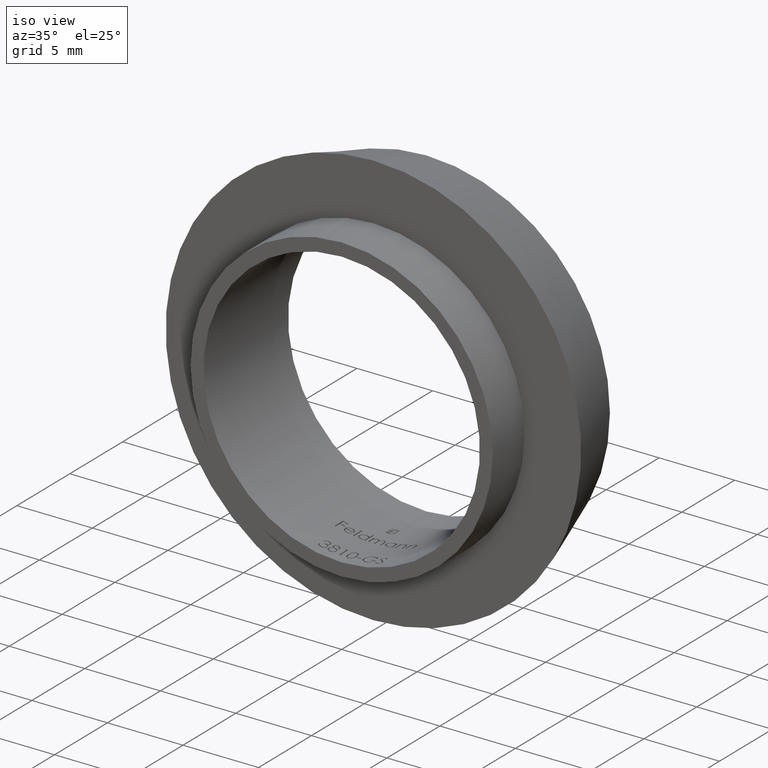
[diagram: clean part render]
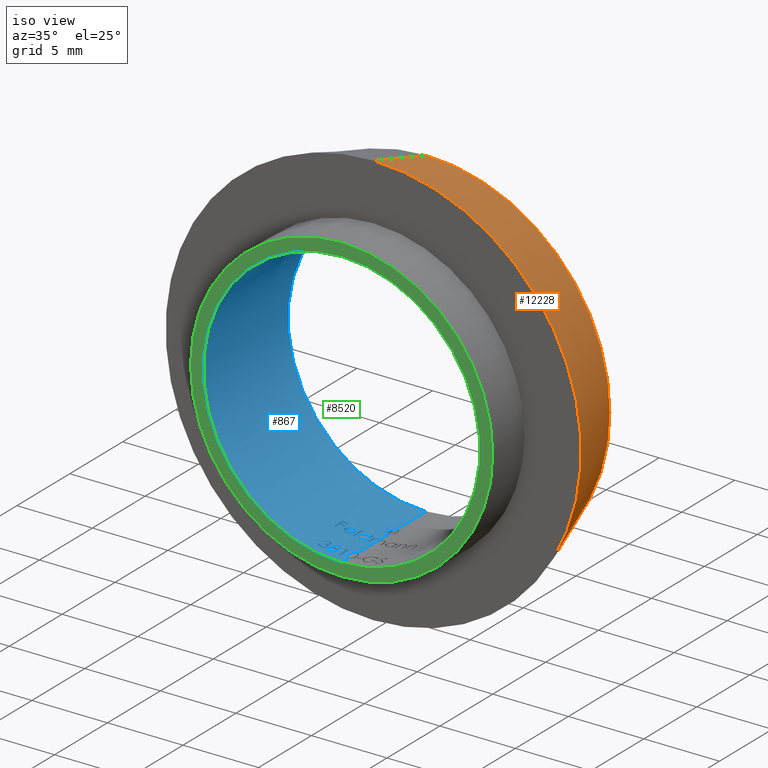
[diagram: same view with three faces highlighted in distinct colors, each labeled with its STEP entity id]
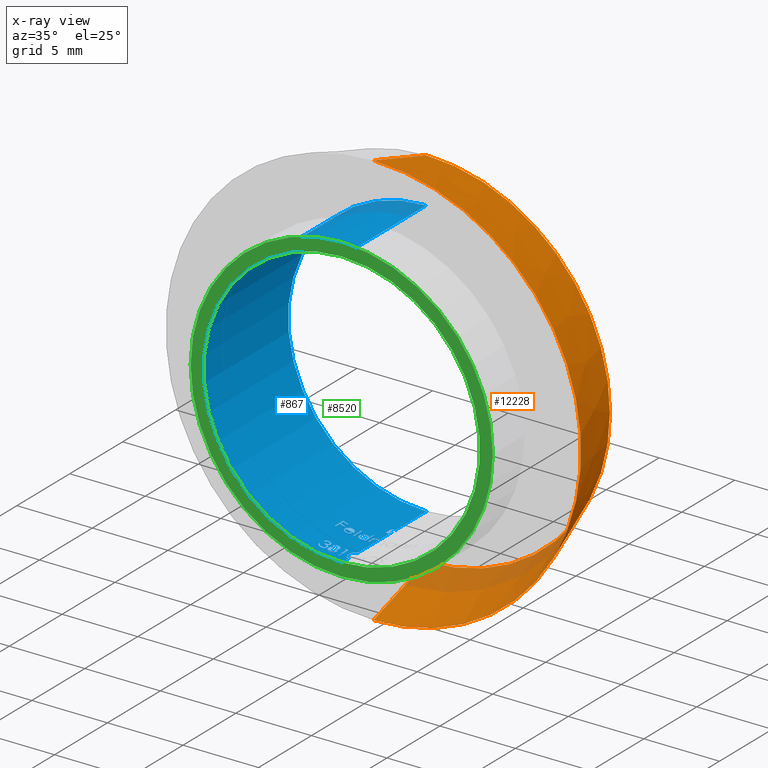
[diagram: x-ray of the same camera — body ghosted, the three highlighted faces saturated]
A machine part, iso view with three faces highlighted in distinct colors.
The next image is the same camera in x-ray (body ghosted, the three faces saturated) — at least one of them is partly hidden behind the body in this view.
Their STEP definitions:

[orange] entity #12228 — the highlighted conical surface has half-angle 17.745 deg.
#77 = ORIENTED_EDGE ( 'NONE', *, *, #10249, .T. ) ;
#293 = CARTESIAN_POINT ( 'NONE',  ( 1.585917604895822417E-15, 8.000000000000000000, 12.15000000000000036 ) ) ;
#1334 = CARTESIAN_POINT ( 'NONE',  ( 1.683889348827610654E-15, 3.000000000000000888, 13.75000000000000000 ) ) ;
#1388 = CARTESIAN_POINT ( 'NONE',  ( 0.000000000000000000, 8.000000000000000000, 0.000000000000000000 ) ) ;
#2327 = EDGE_CURVE ( 'NONE', #10553, #2738, #6472, .T. ) ;
#2738 = VERTEX_POINT ( 'NONE', #12112 ) ;
#3093 = DIRECTION ( 'NONE',  ( 0.000000000000000000, 0.000000000000000000, -1.000000000000000000 ) ) ;
#3854 = VERTEX_POINT ( 'NONE', #293 ) ;
#3872 = CARTESIAN_POINT ( 'NONE',  ( 0.000000000000000000, 3.000000000000000888, -13.75000000000000000 ) ) ;
#4125 = CARTESIAN_POINT ( 'NONE',  ( 0.000000000000000000, 8.000000000000000000, -12.15000000000000036 ) ) ;
#4307 = VECTOR ( 'NONE', #7558, 1000.000000000000000 ) ;
#4491 = DIRECTION ( 'NONE',  ( 0.000000000000000000, 0.000000000000000000, -1.000000000000000000 ) ) ;
#5077 = CONICAL_SURFACE ( 'NONE', #7821, 13.75000000000000000, 0.3097029445424560601 ) ;
#5177 = CARTESIAN_POINT ( 'NONE',  ( 0.000000000000000000, 3.000000000000000888, 0.000000000000000000 ) ) ;
#5238 = CIRCLE ( 'NONE', #12544, 12.15000000000000036 ) ;
#5319 = CARTESIAN_POINT ( 'NONE',  ( 1.683889348827610654E-15, 3.000000000000000888, 13.75000000000000000 ) ) ;
#5344 = DIRECTION ( 'NONE',  ( 0.000000000000000000, 0.000000000000000000, -1.000000000000000000 ) ) ;
#6472 = LINE ( 'NONE', #3872, #8204 ) ;
#6845 = FACE_OUTER_BOUND ( 'NONE', #7197, .T. ) ;
#7079 = EDGE_CURVE ( 'NONE', #3854, #13245, #11825, .T. ) ;
#7197 = EDGE_LOOP ( 'NONE', ( #77, #12014, #10306, #12532 ) ) ;
#7558 = DIRECTION ( 'NONE',  ( 3.732426186554558078E-17, -0.9524241471993242225, 0.3047757271037835891 ) ) ;
#7648 = CIRCLE ( 'NONE', #10716, 13.75000000000000000 ) ;
#7821 = AXIS2_PLACEMENT_3D ( 'NONE', #5177, #11420, #3093 ) ;
#8009 = EDGE_CURVE ( 'NONE', #2738, #13245, #7648, .T. ) ;
#8204 = VECTOR ( 'NONE', #9021, 1000.000000000000000 ) ;
#9021 = DIRECTION ( 'NONE',  ( 0.000000000000000000, -0.9524241471993242225, -0.3047757271037835891 ) ) ;
#10249 = EDGE_CURVE ( 'NONE', #10553, #3854, #5238, .T. ) ;
#10306 = ORIENTED_EDGE ( 'NONE', *, *, #8009, .F. ) ;
#10553 = VERTEX_POINT ( 'NONE', #4125 ) ;
#10716 = AXIS2_PLACEMENT_3D ( 'NONE', #11406, #11454, #5344 ) ;
#11406 = CARTESIAN_POINT ( 'NONE',  ( 0.000000000000000000, 3.000000000000000888, 0.000000000000000000 ) ) ;
#11420 = DIRECTION ( 'NONE',  ( -0.000000000000000000, -1.000000000000000000, -0.000000000000000000 ) ) ;
#11454 = DIRECTION ( 'NONE',  ( -0.000000000000000000, -1.000000000000000000, -0.000000000000000000 ) ) ;
#11548 = DIRECTION ( 'NONE',  ( -0.000000000000000000, -1.000000000000000000, -0.000000000000000000 ) ) ;
#11825 = LINE ( 'NONE', #1334, #4307 ) ;
#12014 = ORIENTED_EDGE ( 'NONE', *, *, #7079, .T. ) ;
#12112 = CARTESIAN_POINT ( 'NONE',  ( 0.000000000000000000, 3.000000000000000888, -13.75000000000000000 ) ) ;
#12228 = ADVANCED_FACE ( 'NONE', ( #6845 ), #5077, .T. ) ;
#12532 = ORIENTED_EDGE ( 'NONE', *, *, #2327, .F. ) ;
#12544 = AXIS2_PLACEMENT_3D ( 'NONE', #1388, #11548, #4491 ) ;
#13245 = VERTEX_POINT ( 'NONE', #5319 ) ;

[blue] entity #867 — the highlighted cylindrical surface (partial cylindrical patch) has radius 9.15 mm, axis along (-0, -1, -0).
#2 = DIRECTION ( 'NONE',  ( 0.000000000000000000, 0.000000000000000000, -1.000000000000000000 ) ) ;
#5 = EDGE_CURVE ( 'NONE', #12942, #9891, #7926, .T. ) ;
#11 = AXIS2_PLACEMENT_3D ( 'NONE', #3267, #10518, #1211 ) ;
#13 = CARTESIAN_POINT ( 'NONE',  ( -0.07972280041371017367, 5.134902097068554383, -9.149652686036462867 ) ) ;
#18 = ORIENTED_EDGE ( 'NONE', *, *, #3896, .T. ) ;
#24 = EDGE_CURVE ( 'NONE', #5491, #3698, #7611, .T. ) ;
#43 = CARTESIAN_POINT ( 'NONE',  ( -0.07672489432211244964, 1.490397121150989879, -9.149798985474399515 ) ) ;
#45 = VERTEX_POINT ( 'NONE', #12951 ) ;
#64 = EDGE_CURVE ( 'NONE', #4980, #8744, #6837, .T. ) ;
#65 = CARTESIAN_POINT ( 'NONE',  ( -1.761701263947642371, 1.384905102295027612, -8.978803297579082354 ) ) ;
#75 = CARTESIAN_POINT ( 'NONE',  ( -1.109314215818997473, 1.453451666558196465, -9.082531700455410473 ) ) ;
#81 = CARTESIAN_POINT ( 'NONE',  ( -0.2197440905448728166, 3.560808543669872428, -9.147360960116889927 ) ) ;
#83 = EDGE_CURVE ( 'NONE', #9734, #1073, #2311, .T. ) ;
#115 = VERTEX_POINT ( 'NONE', #9018 ) ;
#127 = ORIENTED_EDGE ( 'NONE', *, *, #5816, .T. ) ;
#132 = DIRECTION ( 'NONE',  ( 0.000000000000000000, 0.000000000000000000, 1.000000000000000000 ) ) ;
#141 = EDGE_CURVE ( 'NONE', #6049, #4980, #6506, .T. ) ;
#169 = CARTESIAN_POINT ( 'NONE',  ( -0.2505740373820418698, 3.537925064203792491, -9.146577920802080541 ) ) ;
#170 = EDGE_CURVE ( 'NONE', #12441, #8360, #4622, .T. ) ;
#174 = VECTOR ( 'NONE', #11241, 1000.000000000000000 ) ;
#175 = DIRECTION ( 'NONE',  ( 0.000000000000000000, -1.000000000000000000, 0.000000000000000000 ) ) ;
#179 = CARTESIAN_POINT ( 'NONE',  ( -1.063629645740381546, 0.7146271710021122603, -9.088009072404442890 ) ) ;
#181 = EDGE_CURVE ( 'NONE', #7695, #5491, #8537, .T. ) ;
#188 = CARTESIAN_POINT ( 'NONE',  ( -1.628205128205127528, 1.284957181490385070, -9.003968461766541864 ) ) ;
#202 = B_SPLINE_CURVE_WITH_KNOTS ( 'NONE', 3,
 ( #6895, #726, #9946, #1040, #9147, #3142, #8198, #5008, #12284, #4097 ),
 .UNSPECIFIED., .F., .F.,
 ( 4, 2, 2, 2, 4 ),
 ( 2.168404344971008868E-19, 0.0001168308089916821339, 0.0002336616179833640511, 0.0003504924269750459682, 0.0004673232359667278853 ),
 .UNSPECIFIED. ) ;
#211 = CARTESIAN_POINT ( 'NONE',  ( -0.2829482838403288847, 3.399787943197070117, -9.145637725820565223 ) ) ;
#246 = CARTESIAN_POINT ( 'NONE',  ( -2.498277243589744678, 3.712339743589744057, -8.802335531787097267 ) ) ;
#247 = EDGE_CURVE ( 'NONE', #3143, #3082, #5870, .T. ) ;
#267 = VECTOR ( 'NONE', #1294, 1000.000000000000000 ) ;
#342 = B_SPLINE_CURVE_WITH_KNOTS ( 'NONE', 3,
 ( #8752, #3645, #2612, #10713, #9765, #1673, #8847, #4740, #8807, #1537 ),
 .UNSPECIFIED., .F., .F.,
 ( 4, 2, 2, 2, 4 ),
 ( 0.000000000000000000, 0.0001182114322435288625, 0.0002364228644870577250, 0.0003546342967305866011, 0.0004728457289741157753 ),
 .UNSPECIFIED. ) ;
#354 = CARTESIAN_POINT ( 'NONE',  ( -2.057785163466996359, 1.396954614006804096, -8.915711928336428116 ) ) ;
#381 = CARTESIAN_POINT ( 'NONE',  ( -1.720904697516025150, 1.121659655448718373, -8.986711691273248093 ) ) ;
#387 = CARTESIAN_POINT ( 'NONE',  ( -1.586104097359712695, 3.061647180110316668, -9.011498969998482877 ) ) ;
#401 = VERTEX_POINT ( 'NONE', #6517 ) ;
#402 = CARTESIAN_POINT ( 'NONE',  ( 0.000000000000000000, 3.814102564102564763, 0.000000000000000000 ) ) ;
#415 = ORIENTED_EDGE ( 'NONE', *, *, #13192, .T. ) ;
#424 = LINE ( 'NONE', #13015, #9888 ) ;
#463 = CARTESIAN_POINT ( 'NONE',  ( -1.697481922792328790, 3.581707127192315987, -8.991259120302006025 ) ) ;
#517 = CARTESIAN_POINT ( 'NONE',  ( -1.107403571258431585, 3.138558100732432798, -9.082752476758528815 ) ) ;
#528 = CARTESIAN_POINT ( 'NONE',  ( -1.787527544070513619, 3.590224358974359209, -8.973697414064575995 ) ) ;
#529 = FACE_BOUND ( 'NONE', #743, .T. ) ;
#544 = ORIENTED_EDGE ( 'NONE', *, *, #10122, .T. ) ;
#551 = CARTESIAN_POINT ( 'NONE',  ( -1.860828575721153122, 0.7381410256410261272, -8.958784348993985347 ) ) ;
#564 = CARTESIAN_POINT ( 'NONE',  ( -0.1483223300154037638, 5.106773168244839844, -9.148797761805580464 ) ) ;
#566 = B_SPLINE_CURVE_WITH_KNOTS ( 'NONE', 3,
 ( #10263, #9355, #8368, #5219 ),
 .UNSPECIFIED., .F., .F.,
 ( 4, 4 ),
 ( 0.000000000000000000, 2.958278519526988301E-05 ),
 .UNSPECIFIED. ) ;
#584 = ORIENTED_EDGE ( 'NONE', *, *, #10561, .T. ) ;
#600 = ORIENTED_EDGE ( 'NONE', *, *, #11857, .T. ) ;
#613 = CARTESIAN_POINT ( 'NONE',  ( -0.2220340334169989827, 5.029594189596130249, -9.147305662762372336 ) ) ;
#659 = CARTESIAN_POINT ( 'NONE',  ( -0.9949544329509881768, 3.026736839720727712, -9.095819183968513855 ) ) ;
#662 = VERTEX_POINT ( 'NONE', #10071 ) ;
#668 = EDGE_CURVE ( 'NONE', #5309, #6541, #12567, .T. ) ;
#672 = VERTEX_POINT ( 'NONE', #10118 ) ;
#700 = ORIENTED_EDGE ( 'NONE', *, *, #11323, .T. ) ;
#715 = B_SPLINE_CURVE_WITH_KNOTS ( 'NONE', 3,
 ( #551, #5692, #9821, #12870, #4564, #7727, #3884, #8666 ),
 .UNSPECIFIED., .F., .F.,
 ( 4, 2, 2, 4 ),
 ( 0.000000000000000000, 0.0001466790248394772458, 0.0002200185372592161398, 0.0002933580496789550338 ),
 .UNSPECIFIED. ) ;
#726 = CARTESIAN_POINT ( 'NONE',  ( -1.827917158157790656, 2.990725747248540678, -8.965643943495770429 ) ) ;
#729 = EDGE_CURVE ( 'NONE', #115, #5309, #10149, .T. ) ;
#733 = VERTEX_POINT ( 'NONE', #13171 ) ;
#743 = EDGE_LOOP ( 'NONE', ( #11043, #8771, #7019, #544 ) ) ;
#748 = B_SPLINE_CURVE_WITH_KNOTS ( 'NONE', 3,
 ( #10451, #179, #6444, #3326, #3197, #9504 ),
 .UNSPECIFIED., .F., .F.,
 ( 4, 2, 4 ),
 ( 0.000000000000000000, 0.0001176900770379570748, 0.0002353801540759141496 ),
 .UNSPECIFIED. ) ;
#754 = DIRECTION ( 'NONE',  ( -0.000000000000000000, -1.000000000000000000, -0.000000000000000000 ) ) ;
#767 = CIRCLE ( 'NONE', #919, 9.150000000000000355 ) ;
#781 = CARTESIAN_POINT ( 'NONE',  ( -1.862100610977563520, 0.6567307692307696732, -8.958520040419454489 ) ) ;
#789 = CARTESIAN_POINT ( 'NONE',  ( -0.1267478569252934728, 5.118686529629603577, -9.149123195760685334 ) ) ;
#804 =( BOUNDED_CURVE ( )  B_SPLINE_CURVE ( 3, ( #4646, #6625, #12810, #2518 ),
 .UNSPECIFIED., .F., .F. ) 
 B_SPLINE_CURVE_WITH_KNOTS ( ( 4, 4 ),
 ( 4.538326894524134403, 4.545344991185901407 ),
 .UNSPECIFIED. ) 
 CURVE ( )  GEOMETRIC_REPRESENTATION_ITEM ( )  RATIONAL_B_SPLINE_CURVE ( ( 1.000000000000000000, 0.9999958955308155817, 0.9999958955308155817, 1.000000000000000000 ) ) 
 REPRESENTATION_ITEM ( '' )  );
#811 = ORIENTED_EDGE ( 'NONE', *, *, #2532, .T. ) ;
#812 = CARTESIAN_POINT ( 'NONE',  ( -1.144831730769231726, 3.291614082532051899, -9.078097835352069822 ) ) ;
#820 = CARTESIAN_POINT ( 'NONE',  ( -0.2103691882956235659, 3.565288416045417463, -9.147586170358149360 ) ) ;
#858 = CARTESIAN_POINT ( 'NONE',  ( -1.588147435784814210, 0.9382838692095902822, -9.011120249691076722 ) ) ;
#862 = FACE_BOUND ( 'NONE', #8144, .T. ) ;
#867 = ADVANCED_FACE ( 'NONE', ( #11581, #3260, #862, #11436, #1659, #529, #8872, #1339 ), #9351, .F. ) ;
#912 = VERTEX_POINT ( 'NONE', #6758 ) ;
#919 = AXIS2_PLACEMENT_3D ( 'NONE', #2201, #175, #5325 ) ;
#927 = DIRECTION ( 'NONE',  ( 0.000000000000000000, 1.000000000000000000, 0.000000000000000000 ) ) ;
#938 = VERTEX_POINT ( 'NONE', #4781 ) ;
#942 = VERTEX_POINT ( 'NONE', #9811 ) ;
#963 = ORIENTED_EDGE ( 'NONE', *, *, #6107, .T. ) ;
#987 = CARTESIAN_POINT ( 'NONE',  ( -0.2506711586061204922, 4.499999999999986677, -9.146565692665365788 ) ) ;
#1014 = CARTESIAN_POINT ( 'NONE',  ( -1.475560897435897134, 1.287501252003205643, -9.030239201591404807 ) ) ;
#1020 = VERTEX_POINT ( 'NONE', #5942 ) ;
#1031 = VERTEX_POINT ( 'NONE', #9016 ) ;
#1040 = CARTESIAN_POINT ( 'NONE',  ( -1.938458765386811722, 3.022725831383194173, -8.942385236289545958 ) ) ;
#1058 = LINE ( 'NONE', #11090, #11622 ) ;
#1065 = CARTESIAN_POINT ( 'NONE',  ( -0.06962954783691477356, 5.136888740925485308, -9.149736478459297828 ) ) ;
#1073 = VERTEX_POINT ( 'NONE', #12153 ) ;
#1074 = CARTESIAN_POINT ( 'NONE',  ( -1.705526016551599078, 1.320454284598103545, -8.989642985507003914 ) ) ;
#1078 = CARTESIAN_POINT ( 'NONE',  ( -0.7835737179487172188, 1.389423076923077316, -9.116387016167097457 ) ) ;
#1126 = CARTESIAN_POINT ( 'NONE',  ( -0.9776084983690288555, 0.8783346812341011889, -9.097625080158907807 ) ) ;
#1129 = CARTESIAN_POINT ( 'NONE',  ( -1.798180839342949477, 3.061057692307692868, -8.971568740695234467 ) ) ;
#1160 = CARTESIAN_POINT ( 'NONE',  ( -2.498277243589744678, 3.386698717948718240, -8.802335531787097267 ) ) ;
#1174 = CARTESIAN_POINT ( 'NONE',  ( -1.187082969238096419, 1.486730693603564690, -9.072709286025403941 ) ) ;
#1179 = CARTESIAN_POINT ( 'NONE',  ( -0.1751997966536541218, 3.509776374255311193, -9.148361570203425330 ) ) ;
#1208 = EDGE_CURVE ( 'NONE', #4940, #2137, #6973, .T. ) ;
#1211 = DIRECTION ( 'NONE',  ( 0.000000000000000000, 0.000000000000000000, -1.000000000000000000 ) ) ;
#1228 = DIRECTION ( 'NONE',  ( -0.000000000000000000, -1.000000000000000000, -0.000000000000000000 ) ) ;
#1245 = CARTESIAN_POINT ( 'NONE',  ( -1.707552026079964147, 1.240337005614808419, -8.989269509649345125 ) ) ;
#1282 = CARTESIAN_POINT ( 'NONE',  ( -5.169140098881778840E-28, 4.499999999999999112, -9.150000000000000355 ) ) ;
#1294 = DIRECTION ( 'NONE',  ( -0.000000000000000000, -1.000000000000000000, -0.000000000000000000 ) ) ;
#1311 = CARTESIAN_POINT ( 'NONE',  ( 0.000000000000000000, 3.274759615384616129, 0.000000000000000000 ) ) ;
#1315 = CARTESIAN_POINT ( 'NONE',  ( -1.969502086932344298, 1.467654289305456938, -8.935563345881607944 ) ) ;
#1321 = DIRECTION ( 'NONE',  ( 1.000000000000000000, 1.044625830888765778E-13, 0.000000000000000000 ) ) ;
#1330 = CARTESIAN_POINT ( 'NONE',  ( -1.803159295668329332, 1.489468778601652277, -8.970757530249013456 ) ) ;
#1339 = FACE_OUTER_BOUND ( 'NONE', #5477, .T. ) ;
#1343 = CARTESIAN_POINT ( 'NONE',  ( -0.01173246304491000480, 3.480174626038239794, -9.150000000000003908 ) ) ;
#1359 = EDGE_CURVE ( 'NONE', #12989, #10105, #5360, .T. ) ;
#1369 = LINE ( 'NONE', #4907, #5872 ) ;
#1392 = LINE ( 'NONE', #4313, #9235 ) ;
#1436 = ORIENTED_EDGE ( 'NONE', *, *, #12472, .T. ) ;
#1437 = CARTESIAN_POINT ( 'NONE',  ( -1.608217317402398594, 3.043875074195451447, -9.007591683401408034 ) ) ;
#1472 = CARTESIAN_POINT ( 'NONE',  ( -1.634883313301281449, 1.053923778044872250, -9.002758274656107673 ) ) ;
#1474 = DIRECTION ( 'NONE',  ( -0.000000000000000000, -1.000000000000000000, -0.000000000000000000 ) ) ;
#1478 = EDGE_CURVE ( 'NONE', #9628, #5828, #2628, .T. ) ;
#1512 = B_SPLINE_CURVE_WITH_KNOTS ( 'NONE', 3,
 ( #5602, #9676, #3562, #4472, #2442, #4610, #12724, #7599, #6675, #5648 ),
 .UNSPECIFIED., .F., .F.,
 ( 4, 2, 2, 2, 4 ),
 ( 0.000000000000000000, 0.0001389280845639328642, 0.0002778561691278657285, 0.0004167842536917985927, 0.0005557123382557314570 ),
 .UNSPECIFIED. ) ;
#1514 = LINE ( 'NONE', #1764, #6024 ) ;
#1537 = CARTESIAN_POINT ( 'NONE',  ( -0.8401792868589753605, 3.590224358974359209, -9.111344509233154199 ) ) ;
#1545 = CARTESIAN_POINT ( 'NONE',  ( -1.099534334405833258, 1.136732412114134894, -9.083748639267920311 ) ) ;
#1560 = EDGE_CURVE ( 'NONE', #11993, #7695, #11629, .T. ) ;
#1568 = VERTEX_POINT ( 'NONE', #9494 ) ;
#1579 = CARTESIAN_POINT ( 'NONE',  ( -2.025080128205127394, 1.287660256410256832, -8.923090858797118941 ) ) ;
#1582 = CARTESIAN_POINT ( 'NONE',  ( -0.1001727764423087225, 3.590224358974359653, -9.149451645582910686 ) ) ;
#1610 = CARTESIAN_POINT ( 'NONE',  ( -1.508727739160145909, 0.8330880140054730543, -9.024768907318915012 ) ) ;
#1628 = DIRECTION ( 'NONE',  ( 0.000000000000000000, 1.000000000000000000, 0.000000000000000000 ) ) ;
#1649 = CARTESIAN_POINT ( 'NONE',  ( -0.1960356245897435512, 5.066436976486730082, -9.147901879911563228 ) ) ;
#1658 = CARTESIAN_POINT ( 'NONE',  ( -0.6614583333333325932, 1.389423076923077316, -9.126060095860857757 ) ) ;
#1659 = FACE_BOUND ( 'NONE', #12347, .T. ) ;
#1673 = CARTESIAN_POINT ( 'NONE',  ( -1.025799014753629779, 3.531361624094419671, -9.092362358802212441 ) ) ;
#1682 = ORIENTED_EDGE ( 'NONE', *, *, #7643, .T. ) ;
#1691 = CARTESIAN_POINT ( 'NONE',  ( -1.475560897435897134, 1.287501252003205643, -9.030239201591404807 ) ) ;
#1739 = CARTESIAN_POINT ( 'NONE',  ( -1.242937449919871540, 1.491185897435897800, -9.065186511902924238 ) ) ;
#1747 = DIRECTION ( 'NONE',  ( -0.000000000000000000, -1.000000000000000000, -0.000000000000000000 ) ) ;
#1763 = CARTESIAN_POINT ( 'NONE',  ( -1.359646684695512420, 1.119274589342949211, -9.048417590540154265 ) ) ;
#1764 = CARTESIAN_POINT ( 'NONE',  ( -1.358533653846154543, 0.000000000000000000, -9.048584768424698055 ) ) ;
#1809 = CARTESIAN_POINT ( 'NONE',  ( -0.2197440905448728166, 3.560808543669872428, -9.147360960116889927 ) ) ;
#1819 = CARTESIAN_POINT ( 'NONE',  ( -1.441968651944974811, 1.071198116206825368, -9.035713336595257772 ) ) ;
#1828 = ORIENTED_EDGE ( 'NONE', *, *, #12200, .T. ) ;
#1837 = ORIENTED_EDGE ( 'NONE', *, *, #11314, .T. ) ;
#1860 = AXIS2_PLACEMENT_3D ( 'NONE', #12945, #8601, #10790 ) ;
#1863 = CARTESIAN_POINT ( 'NONE',  ( -2.055608974358973828, 0.8907852564102568538, -8.916107432312312397 ) ) ;
#1874 = B_SPLINE_CURVE_WITH_KNOTS ( 'NONE', 3,
 ( #9031, #2939, #2759, #4981, #9919, #10102, #3796, #4848, #11994, #6911 ),
 .UNSPECIFIED., .F., .F.,
 ( 4, 3, 3, 4 ),
 ( 0.000000000000000000, 2.799792362413230506E-05, 5.601605394140521659E-05, 0.0001118537655193091175 ),
 .UNSPECIFIED. ) ;
#1876 = DIRECTION ( 'NONE',  ( -1.000000000000000000, -1.523333675352310918E-13, 0.000000000000000000 ) ) ;
#1880 = LINE ( 'NONE', #7567, #3636 ) ;
#1892 = CARTESIAN_POINT ( 'NONE',  ( -1.474250590514907033, 1.250967481776908530, -9.030453308617046204 ) ) ;
#1910 = CARTESIAN_POINT ( 'NONE',  ( -1.727553725471364432, 0.6848144055643919925, -8.985497253871390200 ) ) ;
#1919 = CARTESIAN_POINT ( 'NONE',  ( -1.532772265720081739, 3.447151194449317391, -9.020730070278920820 ) ) ;
#1938 = AXIS2_PLACEMENT_3D ( 'NONE', #7922, #10115, #1876 ) ;
#1947 = CARTESIAN_POINT ( 'NONE',  ( -1.789276592548077804, 2.989823717948718595, -8.973348832813730525 ) ) ;
#1948 = DIRECTION ( 'NONE',  ( 0.000000000000000000, 1.000000000000000000, 0.000000000000000000 ) ) ;
#1961 = CARTESIAN_POINT ( 'NONE',  ( -1.359646684695512420, 1.119274589342949211, -9.048417590540154265 ) ) ;
#1964 = EDGE_CURVE ( 'NONE', #942, #672, #5040, .T. ) ;
#1989 = AXIS2_PLACEMENT_3D ( 'NONE', #7854, #2882, #13096 ) ;
#1991 = CARTESIAN_POINT ( 'NONE',  ( -1.588794635413224965, 0.8775292525727725890, -9.011006233189556625 ) ) ;
#1998 = EDGE_CURVE ( 'NONE', #11154, #11041, #10294, .T. ) ;
#2010 = VECTOR ( 'NONE', #12579, 1000.000000000000000 ) ;
#2059 = CARTESIAN_POINT ( 'NONE',  ( -1.591479419211065949, 0.9637370330563964638, -9.010535931545947008 ) ) ;
#2062 = CARTESIAN_POINT ( 'NONE',  ( -1.608858457222424487, 3.147083831730090431, -9.007479072298506750 ) ) ;
#2065 = CARTESIAN_POINT ( 'NONE',  ( -2.569511217948719395, 0.000000000000000000, -8.781805742604175791 ) ) ;
#2074 = CARTESIAN_POINT ( 'NONE',  ( 0.000000000000000000, 3.000000000000000888, 0.000000000000000000 ) ) ;
#2076 = CARTESIAN_POINT ( 'NONE',  ( -0.2295248622058371490, 1.386119831708769512, -9.147142879262174731 ) ) ;
#2106 = CARTESIAN_POINT ( 'NONE',  ( -1.018843787135532031, 1.313957953034220250, -9.093099517412136734 ) ) ;
#2109 = ORIENTED_EDGE ( 'NONE', *, *, #24, .T. ) ;
#2121 = DIRECTION ( 'NONE',  ( -0.000000000000000000, -1.000000000000000000, -0.000000000000000000 ) ) ;
#2132 = CARTESIAN_POINT ( 'NONE',  ( -1.902964743589742769, 1.155368589743590357, -8.949928780982251197 ) ) ;
#2137 = VERTEX_POINT ( 'NONE', #8431 ) ;
#2143 = CARTESIAN_POINT ( 'NONE',  ( -1.584637920673077627, 3.183173076923077272, -9.011738048809725399 ) ) ;
#2151 = EDGE_CURVE ( 'NONE', #11041, #9329, #12073, .T. ) ;
#2156 = CARTESIAN_POINT ( 'NONE',  ( -0.2951121794871778836, 1.073640324519231193, -9.145239679828971902 ) ) ;
#2172 = CARTESIAN_POINT ( 'NONE',  ( -2.035021555160588136, 3.454233424454994594, -8.920854214884403888 ) ) ;
#2174 = CARTESIAN_POINT ( 'NONE',  ( -0.06253937204978414488, 4.500000000000000888, -9.149786272200220338 ) ) ;
#2181 = CARTESIAN_POINT ( 'NONE',  ( -1.824164691081150425, 1.407897923356538961, -8.966338211279348158 ) ) ;
#2189 = CARTESIAN_POINT ( 'NONE',  ( -1.017628205128204844, 1.285275190304487669, -9.093235553757946121 ) ) ;
#2197 = CARTESIAN_POINT ( 'NONE',  ( -0.2768537027770138770, 3.509911882549956896, -9.145812601863507751 ) ) ;
#2201 = CARTESIAN_POINT ( 'NONE',  ( 0.000000000000000000, 1.470833333333333659, 0.000000000000000000 ) ) ;
#2213 = CARTESIAN_POINT ( 'NONE',  ( -2.182812500000001599, 3.793750000000000178, -8.885821829737739819 ) ) ;
#2217 = CARTESIAN_POINT ( 'NONE',  ( -0.3002003205128215835, 0.000000000000000000, -9.145074071190675724 ) ) ;
#2229 = VECTOR ( 'NONE', #5343, 1000.000000000000000 ) ;
#2230 = EDGE_LOOP ( 'NONE', ( #5702, #11008, #4689, #18, #2330, #12858, #13152, #12042, #2336, #8306 ) ) ;
#2252 = CARTESIAN_POINT ( 'NONE',  ( 0.000000000000000000, 0.000000000000000000, -9.150000000000000355 ) ) ;
#2282 = CARTESIAN_POINT ( 'NONE',  ( -0.6701334288895001157, 3.035968732361062905, -9.125518901190302401 ) ) ;
#2286 = DIRECTION ( 'NONE',  ( 0.000000000000000000, 1.000000000000000000, 0.000000000000000000 ) ) ;
#2287 = CARTESIAN_POINT ( 'NONE',  ( -0.2945329628055274318, 3.487031332762509095, -9.145260110427422262 ) ) ;
#2302 = VERTEX_POINT ( 'NONE', #3920 ) ;
#2311 = CIRCLE ( 'NONE', #2859, 9.150000000000000355 ) ;
#2330 = ORIENTED_EDGE ( 'NONE', *, *, #7989, .T. ) ;
#2336 = ORIENTED_EDGE ( 'NONE', *, *, #668, .T. ) ;
#2364 = B_SPLINE_CURVE_WITH_KNOTS ( 'NONE', 3,
 ( #613, #3806, #8777, #7782, #13028, #1649, #13074, #7831, #10868, #12977 ),
 .UNSPECIFIED., .F., .F.,
 ( 4, 3, 3, 4 ),
 ( 0.000000000000000000, 2.704652555030786078E-05, 5.418075418232765240E-05, 0.0001080884403027447435 ),
 .UNSPECIFIED. ) ;
#2406 = CARTESIAN_POINT ( 'NONE',  ( 1.345479014186749984E-13, 3.461765395973923631, -9.150000000000000355 ) ) ;
#2408 = CIRCLE ( 'NONE', #12072, 9.150000000000000355 ) ;
#2436 = EDGE_CURVE ( 'NONE', #9891, #3036, #6800, .T. ) ;
#2439 = CIRCLE ( 'NONE', #9555, 9.150000000000000355 ) ;
#2442 = CARTESIAN_POINT ( 'NONE',  ( -0.2286264997617576955, 0.7614409550210493594, -9.147165650799733427 ) ) ;
#2469 = CARTESIAN_POINT ( 'NONE',  ( -0.3002003205128215835, 3.580048076923077360, -9.145074071190675724 ) ) ;
#2474 = VECTOR ( 'NONE', #6665, 1000.000000000000000 ) ;
#2491 = EDGE_CURVE ( 'NONE', #5059, #8117, #2439, .T. ) ;
#2518 = CARTESIAN_POINT ( 'NONE',  ( -1.521354166666667451, 3.149941155849359298, -9.022637169894730746 ) ) ;
#2532 = EDGE_CURVE ( 'NONE', #10636, #5935, #9986, .T. ) ;
#2533 = CARTESIAN_POINT ( 'NONE',  ( -1.553950070112180004, 3.476059194711539124, -9.017080413282247520 ) ) ;
#2534 = DIRECTION ( 'NONE',  ( -0.000000000000000000, -1.000000000000000000, -0.000000000000000000 ) ) ;
#2543 = CARTESIAN_POINT ( 'NONE',  ( -0.9215780309475146703, 2.996621291099914153, -9.103546280652029310 ) ) ;
#2569 = EDGE_CURVE ( 'NONE', #4014, #8335, #7929, .T. ) ;
#2571 = VERTEX_POINT ( 'NONE', #6064 ) ;
#2575 = CARTESIAN_POINT ( 'NONE',  ( -0.5342548076923087086, 3.814102564102564763, -9.134389514382318609 ) ) ;
#2600 = AXIS2_PLACEMENT_3D ( 'NONE', #2866, #13124, #4948 ) ;
#2612 = CARTESIAN_POINT ( 'NONE',  ( -1.137564415431949749, 3.370992682992286493, -9.079025164862487784 ) ) ;
#2628 = B_SPLINE_CURVE_WITH_KNOTS ( 'NONE', 3,
 ( #3253, #7355, #8309, #5250, #2172, #10419 ),
 .UNSPECIFIED., .F., .F.,
 ( 4, 2, 4 ),
 ( 4.336808689942017736E-19, 0.0001050742253431183012, 0.0002101484506862361687 ),
 .UNSPECIFIED. ) ;
#2655 = CARTESIAN_POINT ( 'NONE',  ( -0.6054887820512830920, 0.000000000000000000, -9.129944322656632139 ) ) ;
#2677 = EDGE_CURVE ( 'NONE', #12638, #2571, #5894, .T. ) ;
#2693 = EDGE_LOOP ( 'NONE', ( #5174, #10101, #12316, #9623, #13316, #10372 ) ) ;
#2701 = CARTESIAN_POINT ( 'NONE',  ( -1.953014598847449212, 3.545516747384962475, -8.939230282114225545 ) ) ;
#2727 = CARTESIAN_POINT ( 'NONE',  ( -1.441445600814644346, 1.395398144948932107, -9.035757375790334223 ) ) ;
#2757 = CARTESIAN_POINT ( 'NONE',  ( -2.015280498839918444, 0.6977620561475762484, -8.925344214881810956 ) ) ;
#2759 = CARTESIAN_POINT ( 'NONE',  ( -0.2501180973854714717, 4.941694645644679085, -9.146580910421549859 ) ) ;
#2769 = CARTESIAN_POINT ( 'NONE',  ( -1.674191898691974600, 1.094332727667654215, -8.995535942144625707 ) ) ;
#2770 = CARTESIAN_POINT ( 'NONE',  ( -1.423152585483372201, 1.418252367277460957, -9.038673889062554423 ) ) ;
#2787 = B_SPLINE_CURVE_WITH_KNOTS ( 'NONE', 3,
 ( #3673, #3577, #4720, #9693, #11772, #12887, #6739, #1610, #8779, #6689 ),
 .UNSPECIFIED., .F., .F.,
 ( 4, 2, 2, 2, 4 ),
 ( 2.168404344971008868E-19, 0.0001018967630861050482, 0.0002037935261722098796, 0.0003056902892583147381, 0.0004075870523444195424 ),
 .UNSPECIFIED. ) ;
#2834 = CARTESIAN_POINT ( 'NONE',  ( -0.1614861674467409913, 3.582886556962847635, -9.148574873592249190 ) ) ;
#2836 = CARTESIAN_POINT ( 'NONE',  ( -1.287299679487180271, 3.814102564102564763, -9.058993295901714760 ) ) ;
#2854 = ORIENTED_EDGE ( 'NONE', *, *, #7542, .T. ) ;
#2859 = AXIS2_PLACEMENT_3D ( 'NONE', #9857, #1628, #12761 ) ;
#2866 = CARTESIAN_POINT ( 'NONE',  ( 0.000000000000000000, 3.468108974358974805, 0.000000000000000000 ) ) ;
#2882 = DIRECTION ( 'NONE',  ( 0.000000000000000000, 1.000000000000000000, 0.000000000000000000 ) ) ;
#2905 = B_SPLINE_CURVE_WITH_KNOTS ( 'NONE', 3,
 ( #11874, #10647, #8960, #10964, #9936, #10877 ),
 .UNSPECIFIED., .F., .F.,
 ( 4, 2, 4 ),
 ( 0.000000000000000000, 0.0001106982719314351227, 0.0002213965438628702454 ),
 .UNSPECIFIED. ) ;
#2911 = CARTESIAN_POINT ( 'NONE',  ( -2.182812500000001599, 0.000000000000000000, -8.885821829737739819 ) ) ;
#2922 = CARTESIAN_POINT ( 'NONE',  ( 3.071800982117978487E-13, 0.6584676570008032304, -9.149999999999998579 ) ) ;
#2939 = CARTESIAN_POINT ( 'NONE',  ( -0.2505816932653190388, 4.932339792203882745, -9.146568144556205482 ) ) ;
#2952 = CARTESIAN_POINT ( 'NONE',  ( -1.491915742102613018, 3.310701212933900184, -9.027551641497879586 ) ) ;
#2953 = DIRECTION ( 'NONE',  ( 0.000000000000000000, 0.000000000000000000, -1.000000000000000000 ) ) ;
#3017 = EDGE_CURVE ( 'NONE', #11201, #45, #12940, .T. ) ;
#3020 = DIRECTION ( 'NONE',  ( -1.000000000000000000, -2.979363871582024232E-13, 0.000000000000000000 ) ) ;
#3031 = CARTESIAN_POINT ( 'NONE',  ( -1.827528193373096466, 0.6577269926320848947, -8.965706196129744399 ) ) ;
#3033 = CIRCLE ( 'NONE', #5740, 9.150000000000000355 ) ;
#3036 = VERTEX_POINT ( 'NONE', #6407 ) ;
#3039 = CARTESIAN_POINT ( 'NONE',  ( -1.968491985260267585, 3.142236424617803614, -8.935768006761875881 ) ) ;
#3050 = CARTESIAN_POINT ( 'NONE',  ( -1.607296404991947592, 1.011279865529878697, -9.007727947820857395 ) ) ;
#3082 = VERTEX_POINT ( 'NONE', #6634 ) ;
#3088 = CARTESIAN_POINT ( 'NONE',  ( -1.699439102564101800, 1.285275190304487669, -8.990795667607851982 ) ) ;
#3090 = EDGE_CURVE ( 'NONE', #11637, #12638, #7101, .T. ) ;
#3122 = VECTOR ( 'NONE', #7109, 1000.000000000000000 ) ;
#3140 = CARTESIAN_POINT ( 'NONE',  ( -2.498277243589744678, 3.000000000000000444, -8.802335531787097267 ) ) ;
#3142 = CARTESIAN_POINT ( 'NONE',  ( -2.023498713662582826, 3.103010753000906341, -8.923489617185818901 ) ) ;
#3143 = VERTEX_POINT ( 'NONE', #6716 ) ;
#3197 = CARTESIAN_POINT ( 'NONE',  ( -1.208357430017088285, 0.6577646277743880443, -9.069947634557147254 ) ) ;
#3216 = CARTESIAN_POINT ( 'NONE',  ( -1.841705658883871166, 1.409373667410166009, -8.962752652768624984 ) ) ;
#3244 = VERTEX_POINT ( 'NONE', #10800 ) ;
#3253 = CARTESIAN_POINT ( 'NONE',  ( -2.081049679487180892, 3.288433994391026349, -8.910203826597140164 ) ) ;
#3255 = CARTESIAN_POINT ( 'NONE',  ( -0.2506711586061204922, 0.000000000000000000, -9.146565692665365788 ) ) ;
#3260 = FACE_BOUND ( 'NONE', #13149, .T. ) ;
#3267 = CARTESIAN_POINT ( 'NONE',  ( 0.000000000000000000, 8.000000000000000000, 0.000000000000000000 ) ) ;
#3274 = CARTESIAN_POINT ( 'NONE',  ( -0.1040045952584308375, 5.128058692207072333, -9.149413679495756568 ) ) ;
#3284 = VERTEX_POINT ( 'NONE', #11939 ) ;
#3298 = LINE ( 'NONE', #2217, #2010 ) ;
#3314 = CARTESIAN_POINT ( 'NONE',  ( -0.3714342948717959669, 3.000000000000000444, -9.142457906088115038 ) ) ;
#3316 = CARTESIAN_POINT ( 'NONE',  ( -0.2355138774584208949, 3.550018941350898238, -9.146982127631924087 ) ) ;
#3326 = CARTESIAN_POINT ( 'NONE',  ( -1.168646420654447793, 0.6622306848536984036, -9.075137479284371977 ) ) ;
#3329 = CARTESIAN_POINT ( 'NONE',  ( -0.6672426113829305061, 3.537606010168459658, -9.125728886667777928 ) ) ;
#3336 = ORIENTED_EDGE ( 'NONE', *, *, #64, .T. ) ;
#3343 = AXIS2_PLACEMENT_3D ( 'NONE', #402, #8649, #5456 ) ;
#3354 = EDGE_CURVE ( 'NONE', #5322, #11427, #8359, .T. ) ;
#3360 = CARTESIAN_POINT ( 'NONE',  ( -0.2637976544405077339, 3.524132468454664213, -9.146196520822831744 ) ) ;
#3371 = DIRECTION ( 'NONE',  ( 0.000000000000000000, 0.000000000000000000, -1.000000000000000000 ) ) ;
#3392 = CARTESIAN_POINT ( 'NONE',  ( -1.521354166666667451, 3.149941155849359298, -9.022637169894730746 ) ) ;
#3407 = DIRECTION ( 'NONE',  ( 0.000000000000000000, 1.000000000000000000, 0.000000000000000000 ) ) ;
#3412 = VECTOR ( 'NONE', #6964, 1000.000000000000000 ) ;
#3485 = CARTESIAN_POINT ( 'NONE',  ( -1.678747309299018831, 3.001974406432898590, -8.994809112539378759 ) ) ;
#3528 = DIRECTION ( 'NONE',  ( 0.000000000000000000, -1.000000000000000000, 0.000000000000000000 ) ) ;
#3551 = CARTESIAN_POINT ( 'NONE',  ( 0.000000000000000000, 0.000000000000000000, 0.000000000000000000 ) ) ;
#3562 = CARTESIAN_POINT ( 'NONE',  ( -0.1226388938184202609, 0.6708786935477620839, -9.149258438513909297 ) ) ;
#3577 = CARTESIAN_POINT ( 'NONE',  ( -1.281596441843293022, 0.6575615147880553568, -9.059866487678714719 ) ) ;
#3630 = CARTESIAN_POINT ( 'NONE',  ( -1.089630408673742279, 1.098036107697496488, -9.084981583594318622 ) ) ;
#3633 = B_SPLINE_CURVE_WITH_KNOTS ( 'NONE', 3,
 ( #2406, #1343, #10514, #6598, #9607, #7447 ),
 .UNSPECIFIED., .F., .F.,
 ( 4, 2, 4 ),
 ( 0.0001707376762326483981, 0.0002360575638120817861, 0.0003013774513915151742 ),
 .UNSPECIFIED. ) ;
#3636 = VECTOR ( 'NONE', #1474, 1000.000000000000000 ) ;
#3643 = ORIENTED_EDGE ( 'NONE', *, *, #11797, .T. ) ;
#3645 = CARTESIAN_POINT ( 'NONE',  ( -1.143710701586444944, 3.331395604981404635, -9.078239207454775084 ) ) ;
#3670 = B_SPLINE_CURVE_WITH_KNOTS ( 'NONE', 3,
 ( #12473, #8468, #354, #5324, #1315, #4456, #5408, #7541 ),
 .UNSPECIFIED., .F., .F.,
 ( 4, 2, 2, 4 ),
 ( 0.000000000000000000, 0.0001698983226915125409, 0.0002548474840372683776, 0.0003397966453830242686 ),
 .UNSPECIFIED. ) ;
#3673 = CARTESIAN_POINT ( 'NONE',  ( -1.247707582131409865, 0.6567307692307696732, -9.064531195240698835 ) ) ;
#3683 = CARTESIAN_POINT ( 'NONE',  ( -1.130362329727564008, 1.119274589342949433, -9.079910847774490534 ) ) ;
#3692 = CARTESIAN_POINT ( 'NONE',  ( -0.03030206841961485820, 3.581000709869582632, -9.150000000000002132 ) ) ;
#3698 = VERTEX_POINT ( 'NONE', #11010 ) ;
#3748 = CARTESIAN_POINT ( 'NONE',  ( -1.986741510111254216, 0.6813729345138909155, -8.931759411357763412 ) ) ;
#3771 = VECTOR ( 'NONE', #6201, 1000.000000000000000 ) ;
#3796 = CARTESIAN_POINT ( 'NONE',  ( -0.2435590184092864818, 4.978449960708135613, -9.146757841145211287 ) ) ;
#3800 = VERTEX_POINT ( 'NONE', #7229 ) ;
#3806 = CARTESIAN_POINT ( 'NONE',  ( -0.2173027856786880763, 5.037267617766826078, -9.147420505105808175 ) ) ;
#3837 = ORIENTED_EDGE ( 'NONE', *, *, #141, .T. ) ;
#3842 = CARTESIAN_POINT ( 'NONE',  ( -2.081049679487180892, 3.288433994391026349, -8.910203826597140164 ) ) ;
#3878 = EDGE_CURVE ( 'NONE', #5322, #10244, #3633, .T. ) ;
#3884 = CARTESIAN_POINT ( 'NONE',  ( -1.659273121791819072, 0.8811536959558370352, -8.998295005602809482 ) ) ;
#3896 = EDGE_CURVE ( 'NONE', #3082, #4310, #6125, .T. ) ;
#3920 = CARTESIAN_POINT ( 'NONE',  ( -1.247707582131409865, 0.6567307692307696732, -9.064531195240698835 ) ) ;
#3966 = CARTESIAN_POINT ( 'NONE',  ( -0.1132794559648475918, 5.124719927710903455, -9.149303152585318344 ) ) ;
#4014 = VERTEX_POINT ( 'NONE', #9783 ) ;
#4030 = CARTESIAN_POINT ( 'NONE',  ( -1.862100610977563520, 0.6567307692307696732, -8.958520040419454489 ) ) ;
#4053 = CARTESIAN_POINT ( 'NONE',  ( -1.658733974358973517, 0.9060496794871799597, -8.998394390240255447 ) ) ;
#4067 = CARTESIAN_POINT ( 'NONE',  ( -1.401698130433074896, 1.097590057136699881, -9.042098794108445858 ) ) ;
#4097 = CARTESIAN_POINT ( 'NONE',  ( -2.081049679487180892, 3.288433994391026349, -8.910203826597140164 ) ) ;
#4109 = CARTESIAN_POINT ( 'NONE',  ( -0.1228548077423159690, 1.476822120985688214, -9.149257151406365196 ) ) ;
#4114 = CIRCLE ( 'NONE', #11846, 9.150000000000000355 ) ;
#4129 = VECTOR ( 'NONE', #7652, 1000.000000000000000 ) ;
#4143 = VERTEX_POINT ( 'NONE', #8947 ) ;
#4175 = DIRECTION ( 'NONE',  ( 0.000000000000000000, 1.000000000000000000, 0.000000000000000000 ) ) ;
#4178 = B_SPLINE_CURVE_WITH_KNOTS ( 'NONE', 3,
 ( #8265, #11261, #7175, #13, #9256, #1065, #6363, #8175, #10246, #4301 ),
 .UNSPECIFIED., .F., .F.,
 ( 4, 3, 3, 4 ),
 ( 2.032879073410320814E-19, 1.541232630129218002E-05, 3.084148832993844193E-05, 6.162866165352670004E-05 ),
 .UNSPECIFIED. ) ;
#4186 = CARTESIAN_POINT ( 'NONE',  ( -1.860828575721153122, 0.7381410256410261272, -8.958784348993985347 ) ) ;
#4187 = CARTESIAN_POINT ( 'NONE',  ( -1.049364155032755708, 1.393261235832500722, -9.089636660721392758 ) ) ;
#4194 = ORIENTED_EDGE ( 'NONE', *, *, #2569, .T. ) ;
#4216 = CARTESIAN_POINT ( 'NONE',  ( -1.798180839342949477, 3.061057692307692868, -8.971568740695234467 ) ) ;
#4219 = ORIENTED_EDGE ( 'NONE', *, *, #181, .T. ) ;
#4224 = CARTESIAN_POINT ( 'NONE',  ( -1.723226785829901520, 1.351476439233973093, -8.986266713413600726 ) ) ;
#4274 = LINE ( 'NONE', #13093, #6204 ) ;
#4301 = CARTESIAN_POINT ( 'NONE',  ( -0.03390224686066264925, 5.139776491893288224, -9.149937193099077604 ) ) ;
#4310 = VERTEX_POINT ( 'NONE', #2213 ) ;
#4313 = CARTESIAN_POINT ( 'NONE',  ( 0.000000000000000000, 0.000000000000000000, -9.150000000000000355 ) ) ;
#4344 = CARTESIAN_POINT ( 'NONE',  ( 0.000000000000000000, 4.500000000000047962, 0.000000000000000000 ) ) ;
#4351 = VERTEX_POINT ( 'NONE', #9338 ) ;
#4360 = B_SPLINE_CURVE_WITH_KNOTS ( 'NONE', 3,
 ( #6583, #12572, #8429, #3329, #7593, #10495 ),
 .UNSPECIFIED., .F., .F.,
 ( 4, 2, 4 ),
 ( 0.000000000000000000, 0.0001372447037859006133, 0.0002744894075718012265 ),
 .UNSPECIFIED. ) ;
#4362 = CARTESIAN_POINT ( 'NONE',  ( -1.628205128205127528, 1.284957181490385070, -9.003968461766541864 ) ) ;
#4365 = CARTESIAN_POINT ( 'NONE',  ( -0.6054887820512830920, 3.100331780849359564, -9.129944322656632139 ) ) ;
#4376 = VERTEX_POINT ( 'NONE', #7595 ) ;
#4439 = VERTEX_POINT ( 'NONE', #11569 ) ;
#4456 = CARTESIAN_POINT ( 'NONE',  ( -1.916669399495079418, 1.486812939439318138, -8.947044718326436552 ) ) ;
#4472 = CARTESIAN_POINT ( 'NONE',  ( -0.1993153026785183801, 0.7227993243676750224, -9.147909252015629988 ) ) ;
#4473 = ORIENTED_EDGE ( 'NONE', *, *, #10337, .T. ) ;
#4531 = CARTESIAN_POINT ( 'NONE',  ( -1.665516225371142633, 1.087318092200594499, -8.997145196016310464 ) ) ;
#4533 = CARTESIAN_POINT ( 'NONE',  ( -1.789276592548077804, 2.989823717948718595, -8.973348832813730525 ) ) ;
#4564 = CARTESIAN_POINT ( 'NONE',  ( -1.688672640377252288, 0.8128749124119571956, -8.992832268698073506 ) ) ;
#4569 = CARTESIAN_POINT ( 'NONE',  ( -1.017628205128204844, 1.285275190304487669, -9.093235553757946121 ) ) ;
#4589 = EDGE_CURVE ( 'NONE', #10105, #12147, #11384, .T. ) ;
#4590 = VECTOR ( 'NONE', #10197, 1000.000000000000000 ) ;
#4610 = CARTESIAN_POINT ( 'NONE',  ( -0.2690847075442889258, 0.8442684743492835375, -9.146064888230872825 ) ) ;
#4611 = DIRECTION ( 'NONE',  ( 0.000000000000000000, 0.000000000000000000, 1.000000000000000000 ) ) ;
#4622 = B_SPLINE_CURVE_WITH_KNOTS ( 'NONE', 3,
 ( #1763, #7901, #6937, #6974, #1892, #13003 ),
 .UNSPECIFIED., .F., .F.,
 ( 4, 2, 4 ),
 ( 0.000000000000000000, 0.0001074971209739815147, 0.0002149942419479630295 ),
 .UNSPECIFIED. ) ;
#4625 = CARTESIAN_POINT ( 'NONE',  ( -1.144831730769231726, 3.291614082532051899, -9.078097835352069822 ) ) ;
#4646 = CARTESIAN_POINT ( 'NONE',  ( -1.584637920673077627, 3.183173076923077272, -9.011738048809725399 ) ) ;
#4659 = EDGE_CURVE ( 'NONE', #8227, #12015, #5805, .T. ) ;
#4684 = CARTESIAN_POINT ( 'NONE',  ( -0.9769230769230765610, 0.9082757411858978225, -9.097698681632357065 ) ) ;
#4689 = ORIENTED_EDGE ( 'NONE', *, *, #247, .T. ) ;
#4694 = CARTESIAN_POINT ( 'NONE',  ( -0.3002003205128215835, 3.479239282852564674, -9.145074071190675724 ) ) ;
#4695 = DIRECTION ( 'NONE',  ( 0.000000000000000000, 0.000000000000000000, -1.000000000000000000 ) ) ;
#4720 = CARTESIAN_POINT ( 'NONE',  ( -1.315158881009134362, 0.6604461510899394261, -9.055050419727809441 ) ) ;
#4740 = CARTESIAN_POINT ( 'NONE',  ( -0.9197414173371619706, 3.583258976950761454, -9.103730229268705898 ) ) ;
#4749 = CARTESIAN_POINT ( 'NONE',  ( -1.894314329716239031, 0.6574782011042312746, -8.951824159283448878 ) ) ;
#4774 = EDGE_CURVE ( 'NONE', #13002, #8941, #2408, .T. ) ;
#4780 = B_SPLINE_CURVE_WITH_KNOTS ( 'NONE', 3,
 ( #13262, #5130, #3050, #2059, #858, #10212 ),
 .UNSPECIFIED., .F., .F.,
 ( 4, 2, 4 ),
 ( 0.000000000000000000, 7.606360415970131873E-05, 0.0001521272083194023393 ),
 .UNSPECIFIED. ) ;
#4781 = CARTESIAN_POINT ( 'NONE',  ( -0.8401792868589753605, 3.590224358974359209, -9.111344509233154199 ) ) ;
#4793 = ORIENTED_EDGE ( 'NONE', *, *, #3878, .T. ) ;
#4795 = EDGE_CURVE ( 'NONE', #10189, #12082, #715, .T. ) ;
#4796 = CARTESIAN_POINT ( 'NONE',  ( -0.5342548076923087086, 3.000000000000000444, -9.134389514382318609 ) ) ;
#4804 = VERTEX_POINT ( 'NONE', #6771 ) ;
#4805 = VERTEX_POINT ( 'NONE', #2575 ) ;
#4809 = B_SPLINE_CURVE_WITH_KNOTS ( 'NONE', 3,
 ( #10734, #5836, #2543, #659, #9835, #7780, #517, #6781, #8862, #4625 ),
 .UNSPECIFIED., .F., .F.,
 ( 4, 2, 2, 2, 4 ),
 ( 0.000000000000000000, 0.0001185269278126135049, 0.0002370538556252270099, 0.0003555807834378405148, 0.0004741077112504540197 ),
 .UNSPECIFIED. ) ;
#4845 = CARTESIAN_POINT ( 'NONE',  ( -1.925954713413054131, 0.6610971405397115808, -8.945063803699730087 ) ) ;
#4848 = CARTESIAN_POINT ( 'NONE',  ( -0.2387067918336972794, 4.996299050528611119, -9.146887045783879344 ) ) ;
#4907 = CARTESIAN_POINT ( 'NONE',  ( 1.120551821219828341E-15, 0.000000000000000000, 9.150000000000000355 ) ) ;
#4908 = VECTOR ( 'NONE', #8704, 1000.000000000000000 ) ;
#4940 = VERTEX_POINT ( 'NONE', #8251 ) ;
#4948 = DIRECTION ( 'NONE',  ( 0.000000000000000000, 0.000000000000000000, -1.000000000000000000 ) ) ;
#4971 = DIRECTION ( 'NONE',  ( 0.000000000000000000, 1.000000000000000000, 0.000000000000000000 ) ) ;
#4980 = VERTEX_POINT ( 'NONE', #6270 ) ;
#4981 = CARTESIAN_POINT ( 'NONE',  ( -0.2489296187812372885, 4.950951246766261526, -9.146613255456552238 ) ) ;
#4986 = CIRCLE ( 'NONE', #1938, 9.150000000000000355 ) ;
#4992 = DIRECTION ( 'NONE',  ( -0.000000000000000000, -1.000000000000000000, -0.000000000000000000 ) ) ;
#5008 = CARTESIAN_POINT ( 'NONE',  ( -2.073686005547588973, 3.209240919333565145, -8.911932703360951891 ) ) ;
#5009 = CARTESIAN_POINT ( 'NONE',  ( -0.01656587062509582223, 4.499999999999993783, -9.149985003918335025 ) ) ;
#5021 = EDGE_CURVE ( 'NONE', #5828, #11120, #11369, .T. ) ;
#5040 = B_SPLINE_CURVE_WITH_KNOTS ( 'NONE', 3,
 ( #12178, #1991, #8040, #9075, #6006, #6092, #1910, #9035, #3031, #4030 ),
 .UNSPECIFIED., .F., .F.,
 ( 4, 2, 2, 2, 4 ),
 ( 0.000000000000000000, 0.0001049730585482380345, 0.0002099461170964760689, 0.0003149191756447140898, 0.0004198922341929521378 ),
 .UNSPECIFIED. ) ;
#5051 = EDGE_CURVE ( 'NONE', #662, #10843, #804, .T. ) ;
#5059 = VERTEX_POINT ( 'NONE', #1579 ) ;
#5068 = ORIENTED_EDGE ( 'NONE', *, *, #13297, .T. ) ;
#5072 = CARTESIAN_POINT ( 'NONE',  ( -1.905456043288359158, 3.086199013227426402, -8.949437388611418243 ) ) ;
#5094 = EDGE_CURVE ( 'NONE', #13174, #8298, #8976, .T. ) ;
#5099 = CARTESIAN_POINT ( 'NONE',  ( -0.5902243589743582097, 0.6770833333333338144, -9.130943828875157209 ) ) ;
#5103 = CARTESIAN_POINT ( 'NONE',  ( -0.1483223300154037638, 5.106773168244839844, -9.148797761805580464 ) ) ;
#5110 = LINE ( 'NONE', #7396, #267 ) ;
#5128 = B_SPLINE_CURVE_WITH_KNOTS ( 'NONE', 3,
 ( #4365, #5317, #2282, #8414, #9359, #11424 ),
 .UNSPECIFIED., .F., .F.,
 ( 4, 2, 4 ),
 ( 0.000000000000000000, 0.0001358592229071292797, 0.0002717184458142585593 ),
 .UNSPECIFIED. ) ;
#5130 = CARTESIAN_POINT ( 'NONE',  ( -1.619984516144775455, 1.033525596183380024, -9.005463867110814036 ) ) ;
#5141 = CARTESIAN_POINT ( 'NONE',  ( 0.000000000000000000, 0.000000000000000000, -9.150000000000000355 ) ) ;
#5146 = CARTESIAN_POINT ( 'NONE',  ( -0.02973382411858808971, 1.491185897435897800, -9.149951688380834725 ) ) ;
#5157 = CARTESIAN_POINT ( 'NONE',  ( -0.6054887820512830920, 3.814102564102564763, -9.129944322656632139 ) ) ;
#5161 = CARTESIAN_POINT ( 'NONE',  ( -1.853955029605336424, 3.065646466558216154, -8.960247934838699635 ) ) ;
#5168 = CARTESIAN_POINT ( 'NONE',  ( -1.733909553037442652, 1.364762191203041430, -8.984218161864230723 ) ) ;
#5174 = ORIENTED_EDGE ( 'NONE', *, *, #11982, .T. ) ;
#5186 = ORIENTED_EDGE ( 'NONE', *, *, #5051, .T. ) ;
#5219 = CARTESIAN_POINT ( 'NONE',  ( -9.876108974003023830E-12, 1.489546872385247855, -9.149999999999998579 ) ) ;
#5221 = DIRECTION ( 'NONE',  ( 0.000000000000000000, 1.000000000000000000, 0.000000000000000000 ) ) ;
#5224 = CARTESIAN_POINT ( 'NONE',  ( -0.2704722828084274999, 3.517170647763142810, -9.146004008962441034 ) ) ;
#5245 = CARTESIAN_POINT ( 'NONE',  ( -0.1222459880690986711, 5.120703217950585362, -9.149183347075355854 ) ) ;
#5250 = CARTESIAN_POINT ( 'NONE',  ( -2.053056807961921582, 3.423948700630776276, -8.916702928463489997 ) ) ;
#5266 = EDGE_CURVE ( 'NONE', #6240, #9628, #202, .T. ) ;
#5283 = CARTESIAN_POINT ( 'NONE',  ( -0.2809027890299168329, 1.256783648689265620, -9.145689142328238930 ) ) ;
#5309 = VERTEX_POINT ( 'NONE', #9228 ) ;
#5317 = CARTESIAN_POINT ( 'NONE',  ( -0.6355307909814155165, 3.066370433836235865, -9.127951966651531635 ) ) ;
#5322 = VERTEX_POINT ( 'NONE', #6206 ) ;
#5324 = CARTESIAN_POINT ( 'NONE',  ( -1.994024578500463774, 1.452740954169679632, -8.930108662404530051 ) ) ;
#5325 = DIRECTION ( 'NONE',  ( 0.000000000000000000, 0.000000000000000000, -1.000000000000000000 ) ) ;
#5338 = CARTESIAN_POINT ( 'NONE',  ( -1.679617516520013121, 1.417589970482122652, -8.994548375289223685 ) ) ;
#5343 = DIRECTION ( 'NONE',  ( 0.000000000000000000, 1.000000000000000000, 0.000000000000000000 ) ) ;
#5352 = CARTESIAN_POINT ( 'NONE',  ( -1.807249492490345943, 1.403742081190355595, -8.969746332639187969 ) ) ;
#5360 = LINE ( 'NONE', #6013, #11256 ) ;
#5364 = CARTESIAN_POINT ( 'NONE',  ( -0.1440408348665132565, 3.517723635079462952, -9.148920290339439987 ) ) ;
#5393 = B_SPLINE_CURVE_WITH_KNOTS ( 'NONE', 3,
 ( #12963, #12170, #6133, #1819, #4067, #8118 ),
 .UNSPECIFIED., .F., .F.,
 ( 4, 2, 4 ),
 ( 0.000000000000000000, 0.0001417012274918221101, 0.0002834024549836442202 ),
 .UNSPECIFIED. ) ;
#5397 = VERTEX_POINT ( 'NONE', #12512 ) ;
#5399 = CARTESIAN_POINT ( 'NONE',  ( -1.720904697516025150, 1.121659655448718373, -8.986711691273248093 ) ) ;
#5408 = CARTESIAN_POINT ( 'NONE',  ( -1.888333443658500865, 1.490658484650832838, -8.953073897349856480 ) ) ;
#5414 = CARTESIAN_POINT ( 'NONE',  ( 0.000000000000000000, 5.139776491893277566, 0.000000000000000000 ) ) ;
#5428 = DIRECTION ( 'NONE',  ( -1.000000000000000000, -2.471270001022697080E-13, 0.000000000000000000 ) ) ;
#5445 = CARTESIAN_POINT ( 'NONE',  ( -1.718736100236201603, 1.027610117113735733, -8.987160511291083509 ) ) ;
#5456 = DIRECTION ( 'NONE',  ( 0.000000000000000000, 0.000000000000000000, -1.000000000000000000 ) ) ;
#5477 = EDGE_LOOP ( 'NONE', ( #13175, #1837, #3643, #11671, #9962, #9659, #8391, #12791, #9970, #4793, #8898, #7247, #7578, #8120, #1436, #700, #12306, #4219, #2109, #6818, #9181, #12576, #11107, #12655, #9604, #7040, #11989, #9468, #5657, #10233, #13136, #10725, #7013, #9633 ) ) ;
#5490 = CARTESIAN_POINT ( 'NONE',  ( -1.902964743589742769, 1.073958333333333792, -8.949928780982251197 ) ) ;
#5491 = VERTEX_POINT ( 'NONE', #12698 ) ;
#5519 = CARTESIAN_POINT ( 'NONE',  ( -1.860828575721153122, 0.7381410256410261272, -8.958784348993985347 ) ) ;
#5520 = CARTESIAN_POINT ( 'NONE',  ( -2.096314102564102111, 1.287660256410256832, -8.906624904159311740 ) ) ;
#5521 = VERTEX_POINT ( 'NONE', #11634 ) ;
#5591 = VERTEX_POINT ( 'NONE', #6787 ) ;
#5602 = CARTESIAN_POINT ( 'NONE',  ( -0.02973382411858808971, 0.6567307692307696732, -9.149951688380834725 ) ) ;
#5608 = CARTESIAN_POINT ( 'NONE',  ( -1.974486970025892241, 0.7664613837397278306, -8.934443365559197048 ) ) ;
#5644 = CARTESIAN_POINT ( 'NONE',  ( -0.7369854266826916245, 1.470833333333333659, -9.120271513549218056 ) ) ;
#5648 = CARTESIAN_POINT ( 'NONE',  ( -0.2951121794871778836, 1.073640324519231193, -9.145239679828971902 ) ) ;
#5652 = CARTESIAN_POINT ( 'NONE',  ( -0.5902243589743582097, 0.000000000000000000, -9.130943828875157209 ) ) ;
#5657 = ORIENTED_EDGE ( 'NONE', *, *, #11774, .T. ) ;
#5661 = B_SPLINE_CURVE_WITH_KNOTS ( 'NONE', 3,
 ( #3392, #10560, #6556, #387, #1437, #3485, #10638, #4533 ),
 .UNSPECIFIED., .F., .F.,
 ( 4, 2, 2, 4 ),
 ( 0.000000000000000000, 8.246500972038621610E-05, 0.0001649300194407724322, 0.0003298600388815448644 ),
 .UNSPECIFIED. ) ;
#5675 = EDGE_CURVE ( 'NONE', #4804, #5591, #4986, .T. ) ;
#5692 = CARTESIAN_POINT ( 'NONE',  ( -1.812465504588186560, 0.7390504572092498892, -8.968829839684246963 ) ) ;
#5695 = CARTESIAN_POINT ( 'NONE',  ( -1.553950070112180004, 3.476059194711539124, -9.017080413282247520 ) ) ;
#5701 = CARTESIAN_POINT ( 'NONE',  ( -0.09464377248601901771, 5.131044094974632763, -9.149510509110834633 ) ) ;
#5702 = ORIENTED_EDGE ( 'NONE', *, *, #9129, .T. ) ;
#5714 = LINE ( 'NONE', #9047, #10967 ) ;
#5715 = ORIENTED_EDGE ( 'NONE', *, *, #3017, .T. ) ;
#5722 = CARTESIAN_POINT ( 'NONE',  ( -1.787527544070513619, 3.590224358974359209, -8.973697414064575995 ) ) ;
#5740 = AXIS2_PLACEMENT_3D ( 'NONE', #10532, #11648, #12709 ) ;
#5748 = B_SPLINE_CURVE_WITH_KNOTS ( 'NONE', 3,
 ( #1129, #8197, #9274, #11328, #2062, #2143 ),
 .UNSPECIFIED., .F., .F.,
 ( 4, 2, 4 ),
 ( 0.000000000000000000, 0.0001300764955149164991, 0.0002601529910298329982 ),
 .UNSPECIFIED. ) ;
#5760 = CARTESIAN_POINT ( 'NONE',  ( -1.050478686614467083, 1.073031080303162410, -9.089545960210740461 ) ) ;
#5781 = VECTOR ( 'NONE', #1228, 1000.000000000000000 ) ;
#5805 = B_SPLINE_CURVE_WITH_KNOTS ( 'NONE', 3,
 ( #564, #7737, #10817, #9834, #13115, #789, #5245, #3966, #3274, #5701 ),
 .UNSPECIFIED., .F., .F.,
 ( 4, 3, 3, 4 ),
 ( 0.000000000000000000, 1.478917155901476512E-05, 2.959254225304944964E-05, 5.912144681034239239E-05 ),
 .UNSPECIFIED. ) ;
#5813 = DIRECTION ( 'NONE',  ( 0.000000000000000000, 1.000000000000000000, 0.000000000000000000 ) ) ;
#5816 = EDGE_CURVE ( 'NONE', #4143, #7885, #8188, .T. ) ;
#5828 = VERTEX_POINT ( 'NONE', #12266 ) ;
#5834 = VERTEX_POINT ( 'NONE', #2174 ) ;
#5836 = CARTESIAN_POINT ( 'NONE',  ( -0.8821196819129623057, 2.990902016897023508, -9.107467023174338649 ) ) ;
#5863 = EDGE_CURVE ( 'NONE', #8687, #10636, #10255, .T. ) ;
#5870 = LINE ( 'NONE', #2065, #3122 ) ;
#5872 = VECTOR ( 'NONE', #754, 1000.000000000000000 ) ;
#5893 = EDGE_CURVE ( 'NONE', #11524, #11450, #7684, .T. ) ;
#5894 = B_SPLINE_CURVE_WITH_KNOTS ( 'NONE', 3,
 ( #3683, #3630, #5760, #10787, #10832, #4684 ),
 .UNSPECIFIED., .F., .F.,
 ( 4, 2, 4 ),
 ( 3.066586833366748373E-19, 0.0001371884240212496459, 0.0002743768480424990208 ),
 .UNSPECIFIED. ) ;
#5904 = CARTESIAN_POINT ( 'NONE',  ( -0.1816000093998874632, 3.577346163271462043, -9.148202858742035204 ) ) ;
#5935 = VERTEX_POINT ( 'NONE', #11715 ) ;
#5942 = CARTESIAN_POINT ( 'NONE',  ( -0.02973382411858808971, 1.491185897435897800, -9.149951688380834725 ) ) ;
#5951 = VERTEX_POINT ( 'NONE', #5695 ) ;
#5959 = EDGE_CURVE ( 'NONE', #10385, #10189, #12503, .T. ) ;
#5964 = ORIENTED_EDGE ( 'NONE', *, *, #9824, .T. ) ;
#5974 = CARTESIAN_POINT ( 'NONE',  ( -1.798180839342949477, 3.061057692307692868, -8.971568740695234467 ) ) ;
#5992 = EDGE_CURVE ( 'NONE', #11120, #5951, #12593, .T. ) ;
#5996 = DIRECTION ( 'NONE',  ( -2.979806390163183144E-13, 1.000000000000000000, 0.000000000000000000 ) ) ;
#6006 = CARTESIAN_POINT ( 'NONE',  ( -1.645431382773435036, 0.7493940417301721002, -9.000874290332147254 ) ) ;
#6013 = CARTESIAN_POINT ( 'NONE',  ( -1.287299679487180271, 0.000000000000000000, -9.058993295901714760 ) ) ;
#6019 = CARTESIAN_POINT ( 'NONE',  ( 0.000000000000000000, 4.550339699884016653, 0.000000000000000000 ) ) ;
#6024 = VECTOR ( 'NONE', #4971, 1000.000000000000000 ) ;
#6049 = VERTEX_POINT ( 'NONE', #4796 ) ;
#6064 = CARTESIAN_POINT ( 'NONE',  ( -0.9769230769230765610, 0.9082757411858978225, -9.097698681632357065 ) ) ;
#6073 = VECTOR ( 'NONE', #1948, 1000.000000000000000 ) ;
#6076 = VERTEX_POINT ( 'NONE', #6950 ) ;
#6092 = CARTESIAN_POINT ( 'NONE',  ( -1.696799192072241169, 0.7027634174550951851, -8.991332210944095849 ) ) ;
#6107 = EDGE_CURVE ( 'NONE', #672, #13174, #9139, .T. ) ;
#6125 = CIRCLE ( 'NONE', #10075, 9.150000000000000355 ) ;
#6129 = EDGE_CURVE ( 'NONE', #5521, #12441, #5393, .T. ) ;
#6133 = CARTESIAN_POINT ( 'NONE',  ( -1.500827903705888700, 0.9965746659162907362, -9.026123459036844210 ) ) ;
#6191 = CARTESIAN_POINT ( 'NONE',  ( -2.008522077747296741, 3.246443389579146466, -8.926832630978715599 ) ) ;
#6198 = CARTESIAN_POINT ( 'NONE',  ( -1.747241580705170216, 1.376090467624785152, -8.981640384148448675 ) ) ;
#6201 = DIRECTION ( 'NONE',  ( 0.000000000000000000, 1.000000000000000000, 0.000000000000000000 ) ) ;
#6204 = VECTOR ( 'NONE', #5813, 1000.000000000000000 ) ;
#6206 = CARTESIAN_POINT ( 'NONE',  ( 1.345479014186749984E-13, 3.461765395973923631, -9.150000000000000355 ) ) ;
#6229 = LINE ( 'NONE', #9070, #6073 ) ;
#6238 = CARTESIAN_POINT ( 'NONE',  ( -2.009815705128205732, 3.274759615384616129, -8.926541370061531921 ) ) ;
#6240 = VERTEX_POINT ( 'NONE', #1947 ) ;
#6254 = CARTESIAN_POINT ( 'NONE',  ( -1.066717811037416030, 1.415913301661622326, -9.087632982840533558 ) ) ;
#6259 = CARTESIAN_POINT ( 'NONE',  ( -0.2888621551179134106, 3.494828528316071825, -9.145441197921838850 ) ) ;
#6270 = CARTESIAN_POINT ( 'NONE',  ( -0.6054887820512830920, 3.000000000000000444, -9.129944322656632139 ) ) ;
#6315 = EDGE_CURVE ( 'NONE', #12656, #3698, #6580, .T. ) ;
#6325 = EDGE_CURVE ( 'NONE', #6541, #10747, #3033, .T. ) ;
#6332 = B_SPLINE_CURVE_WITH_KNOTS ( 'NONE', 3,
 ( #6609, #10691, #10567, #7619, #5445, #8543, #12603, #5490 ),
 .UNSPECIFIED., .F., .F.,
 ( 4, 2, 2, 4 ),
 ( 0.000000000000000000, 8.328745457197105182E-05, 0.0001665749091439421036, 0.0003331498182878850746 ),
 .UNSPECIFIED. ) ;
#6363 = CARTESIAN_POINT ( 'NONE',  ( -0.06454055067445942095, 5.137619578459001524, -9.149772375164241467 ) ) ;
#6365 = CARTESIAN_POINT ( 'NONE',  ( -1.699439102564101800, 1.285275190304487669, -8.990795667607851982 ) ) ;
#6393 = CIRCLE ( 'NONE', #3343, 9.150000000000000355 ) ;
#6407 = CARTESIAN_POINT ( 'NONE',  ( 0.000000000000000000, 4.550339699884016653, -9.150000000000000355 ) ) ;
#6415 = CARTESIAN_POINT ( 'NONE',  ( -1.993438251201922196, 0.7810722155448722726, -8.930212983946407945 ) ) ;
#6419 = EDGE_CURVE ( 'NONE', #4439, #13327, #8139, .T. ) ;
#6444 = CARTESIAN_POINT ( 'NONE',  ( -1.095598900729413794, 0.6903536953149547184, -9.084245580847143842 ) ) ;
#6459 = VERTEX_POINT ( 'NONE', #2469 ) ;
#6496 = CARTESIAN_POINT ( 'NONE',  ( -1.661620143495975199, 1.395003092595944238, -8.997871565959652429 ) ) ;
#6506 = CIRCLE ( 'NONE', #1989, 9.150000000000000355 ) ;
#6513 = CARTESIAN_POINT ( 'NONE',  ( -1.693990359062644613, 1.140169729441169899, -8.991865635570800208 ) ) ;
#6517 = CARTESIAN_POINT ( 'NONE',  ( -0.3002003205128215835, 3.244071764823718507, -9.145074071190675724 ) ) ;
#6523 = CARTESIAN_POINT ( 'NONE',  ( -0.01656587062509582570, 4.550339699884017541, -9.149985003918335025 ) ) ;
#6541 = VERTEX_POINT ( 'NONE', #12020 ) ;
#6549 = EDGE_CURVE ( 'NONE', #1031, #733, #8961, .T. ) ;
#6552 = VERTEX_POINT ( 'NONE', #812 ) ;
#6556 = CARTESIAN_POINT ( 'NONE',  ( -1.549777068450131745, 3.102521589508850930, -9.017817415098349443 ) ) ;
#6558 = B_SPLINE_CURVE_WITH_KNOTS ( 'NONE', 3,
 ( #9408, #5364, #1179, #10353, #11428, #211, #8288, #7420, #9493, #8416 ),
 .UNSPECIFIED., .F., .F.,
 ( 4, 2, 2, 2, 4 ),
 ( 0.000000000000000000, 9.346481333993362280E-05, 0.0001869296266798672456, 0.0002803944400198008684, 0.0003738592533597344912 ),
 .UNSPECIFIED. ) ;
#6580 = LINE ( 'NONE', #2252, #5781 ) ;
#6582 = ORIENTED_EDGE ( 'NONE', *, *, #8179, .T. ) ;
#6583 = CARTESIAN_POINT ( 'NONE',  ( -0.8401792868589753605, 3.590224358974359209, -9.111344509233154199 ) ) ;
#6591 = CARTESIAN_POINT ( 'NONE',  ( -1.884570522474166676, 0.7384985831124564193, -8.953852910615717420 ) ) ;
#6595 = VERTEX_POINT ( 'NONE', #12401 ) ;
#6598 = CARTESIAN_POINT ( 'NONE',  ( -0.06845586257861140111, 3.514929064610525344, -9.149765190943609738 ) ) ;
#6609 = CARTESIAN_POINT ( 'NONE',  ( -1.658733974358973517, 0.9060496794871799597, -8.998394390240255447 ) ) ;
#6625 = CARTESIAN_POINT ( 'NONE',  ( -1.563556127835871612, 3.172102487217106859, -9.015445103784543335 ) ) ;
#6626 = CARTESIAN_POINT ( 'NONE',  ( -0.01656587062509582223, 0.000000000000000000, -9.149985003918335025 ) ) ;
#6634 = CARTESIAN_POINT ( 'NONE',  ( -2.569511217948719395, 3.793750000000000178, -8.781805742604175791 ) ) ;
#6665 = DIRECTION ( 'NONE',  ( 0.000000000000000000, 1.000000000000000000, 0.000000000000000000 ) ) ;
#6675 = CARTESIAN_POINT ( 'NONE',  ( -0.2948408181450789534, 1.027377374243807484, -9.145248436519874957 ) ) ;
#6676 = CARTESIAN_POINT ( 'NONE',  ( 0.000000000000000000, 3.712339743589744057, 0.000000000000000000 ) ) ;
#6682 = ORIENTED_EDGE ( 'NONE', *, *, #4795, .T. ) ;
#6689 = CARTESIAN_POINT ( 'NONE',  ( -1.516266025641025417, 0.9017565604967953119, -9.023493632706058420 ) ) ;
#6692 = CIRCLE ( 'NONE', #7725, 9.150000000000000355 ) ;
#6716 = CARTESIAN_POINT ( 'NONE',  ( -2.569511217948719395, 3.000000000000000444, -8.781805742604175791 ) ) ;
#6737 = B_SPLINE_CURVE_WITH_KNOTS ( 'NONE', 3,
 ( #7200, #10307, #12376, #9106 ),
 .UNSPECIFIED., .F., .F.,
 ( 4, 4 ),
 ( 2.168404344971008868E-19, 0.0001293217759886163855 ),
 .UNSPECIFIED. ) ;
#6739 = CARTESIAN_POINT ( 'NONE',  ( -1.479915623297611615, 0.7718723745139798309, -9.029538358595146974 ) ) ;
#6757 = CARTESIAN_POINT ( 'NONE',  ( -1.521354166666667451, 3.149941155849359298, -9.022637169894730746 ) ) ;
#6758 = CARTESIAN_POINT ( 'NONE',  ( -0.2220340334169989827, 5.029594189596130249, -9.147305662762372336 ) ) ;
#6760 = CARTESIAN_POINT ( 'NONE',  ( -2.014267828525641679, 3.482101362179487847, -8.925537805363136457 ) ) ;
#6763 = EDGE_CURVE ( 'NONE', #912, #8227, #2364, .T. ) ;
#6765 = CARTESIAN_POINT ( 'NONE',  ( -0.7525181480542495471, 1.443690830458802754, -9.119016354723019191 ) ) ;
#6771 = CARTESIAN_POINT ( 'NONE',  ( -2.642868621984653678E-28, 4.732307441556590000, -9.150000000000000355 ) ) ;
#6781 = CARTESIAN_POINT ( 'NONE',  ( -1.137845834296129732, 3.211382532965113334, -9.078989045101554467 ) ) ;
#6782 = B_SPLINE_CURVE_WITH_KNOTS ( 'NONE', 3,
 ( #4362, #7413, #7451, #10519, #6513, #5399 ),
 .UNSPECIFIED., .F., .F.,
 ( 4, 2, 4 ),
 ( 0.000000000000000000, 9.819669483852382856E-05, 0.0001963933896770476571 ),
 .UNSPECIFIED. ) ;
#6787 = CARTESIAN_POINT ( 'NONE',  ( -0.06253937204978414488, 4.732307441556580230, -9.149786272200220338 ) ) ;
#6796 = EDGE_CURVE ( 'NONE', #8360, #3244, #7277, .T. ) ;
#6800 = CIRCLE ( 'NONE', #10253, 9.150000000000000355 ) ;
#6809 = AXIS2_PLACEMENT_3D ( 'NONE', #12419, #5221, #7454 ) ;
#6818 = ORIENTED_EDGE ( 'NONE', *, *, #6315, .F. ) ;
#6830 = CARTESIAN_POINT ( 'NONE',  ( -1.467698747981517116, 1.344558613501916966, -9.031530167110709328 ) ) ;
#6837 = LINE ( 'NONE', #2655, #4908 ) ;
#6847 = CARTESIAN_POINT ( 'NONE',  ( -1.902964743589742769, 1.155368589743590357, -8.949928780982251197 ) ) ;
#6852 = CARTESIAN_POINT ( 'NONE',  ( -0.1001727764423087225, 3.590224358974359653, -9.149451645582910686 ) ) ;
#6876 = B_SPLINE_CURVE_WITH_KNOTS ( 'NONE', 3,
 ( #13183, #7192, #1174, #12463, #75, #6254, #4187, #8150, #2106, #2189 ),
 .UNSPECIFIED., .F., .F.,
 ( 4, 2, 2, 2, 4 ),
 ( 0.000000000000000000, 8.438661611839127889E-05, 0.0001687732322367825578, 0.0002531598483551738502, 0.0003375464644735651156 ),
 .UNSPECIFIED. ) ;
#6895 = CARTESIAN_POINT ( 'NONE',  ( -1.789276592548077804, 2.989823717948718595, -8.973348832813730525 ) ) ;
#6911 = CARTESIAN_POINT ( 'NONE',  ( -0.2220340334169989827, 5.029594189596130249, -9.147305662762372336 ) ) ;
#6937 = CARTESIAN_POINT ( 'NONE',  ( -1.420971569767123688, 1.157573449229472917, -9.039015173788946811 ) ) ;
#6950 = CARTESIAN_POINT ( 'NONE',  ( -0.5902243589743582097, 1.470833333333333659, -9.130943828875157209 ) ) ;
#6964 = DIRECTION ( 'NONE',  ( -0.000000000000000000, -1.000000000000000000, -0.000000000000000000 ) ) ;
#6968 = EDGE_CURVE ( 'NONE', #12015, #4351, #4178, .T. ) ;
#6973 = CIRCLE ( 'NONE', #11, 9.150000000000000355 ) ;
#6974 = CARTESIAN_POINT ( 'NONE',  ( -1.463123675499423237, 1.215408584806282999, -9.032287895337830719 ) ) ;
#6989 = CIRCLE ( 'NONE', #7239, 9.150000000000000355 ) ;
#7002 = VERTEX_POINT ( 'NONE', #5157 ) ;
#7013 = ORIENTED_EDGE ( 'NONE', *, *, #12559, .T. ) ;
#7014 = B_SPLINE_CURVE_WITH_KNOTS ( 'NONE', 3,
 ( #7235, #1126, #7318, #11324, #12459, #11417 ),
 .UNSPECIFIED., .F., .F.,
 ( 4, 2, 4 ),
 ( 0.000000000000000000, 8.968030913167156356E-05, 0.0001793606182633431271 ),
 .UNSPECIFIED. ) ;
#7016 = CARTESIAN_POINT ( 'NONE',  ( -0.01977396108731645577, 0.6568757548297095017, -9.149984054105336995 ) ) ;
#7019 = ORIENTED_EDGE ( 'NONE', *, *, #12954, .T. ) ;
#7035 = DIRECTION ( 'NONE',  ( 0.000000000000000000, 0.000000000000000000, 1.000000000000000000 ) ) ;
#7040 = ORIENTED_EDGE ( 'NONE', *, *, #9019, .T. ) ;
#7054 = DIRECTION ( 'NONE',  ( 0.000000000000000000, -1.000000000000000000, 0.000000000000000000 ) ) ;
#7083 = AXIS2_PLACEMENT_3D ( 'NONE', #1311, #2286, #11381 ) ;
#7099 = DIRECTION ( 'NONE',  ( 0.000000000000000000, 0.000000000000000000, 1.000000000000000000 ) ) ;
#7101 = B_SPLINE_CURVE_WITH_KNOTS ( 'NONE', 3,
 ( #8615, #7640, #11663, #12723, #1545, #8566 ),
 .UNSPECIFIED., .F., .F.,
 ( 4, 2, 4 ),
 ( 2.168404344971008868E-19, 0.0001054810183699884344, 0.0002109620367399766519 ),
 .UNSPECIFIED. ) ;
#7109 = DIRECTION ( 'NONE',  ( 0.000000000000000000, 1.000000000000000000, 0.000000000000000000 ) ) ;
#7111 = EDGE_CURVE ( 'NONE', #5834, #11524, #9415, .T. ) ;
#7144 = CARTESIAN_POINT ( 'NONE',  ( -1.358533653846154543, 3.000000000000000888, -9.048584768424698055 ) ) ;
#7172 = AXIS2_PLACEMENT_3D ( 'NONE', #3551, #7631, #3371 ) ;
#7175 = CARTESIAN_POINT ( 'NONE',  ( -0.08473682332069884526, 5.133783626253655363, -9.149608997826517154 ) ) ;
#7177 = CARTESIAN_POINT ( 'NONE',  ( -1.515975530755909961, 3.414965349107776493, -9.023548319078766866 ) ) ;
#7192 = CARTESIAN_POINT ( 'NONE',  ( -1.214785216773784704, 1.490270969390992795, -9.069046494797946778 ) ) ;
#7200 = CARTESIAN_POINT ( 'NONE',  ( -2.055608974358973828, 0.8907852564102568538, -8.916107432312312397 ) ) ;
#7228 = CARTESIAN_POINT ( 'NONE',  ( -1.699708993465306905, 1.297178825980713324, -8.990744652862563413 ) ) ;
#7229 = CARTESIAN_POINT ( 'NONE',  ( 1.120551821219828341E-15, -3.122849337825748447E-16, 9.150000000000000355 ) ) ;
#7235 = CARTESIAN_POINT ( 'NONE',  ( -0.9769230769230765610, 0.9082757411858978225, -9.097698681632357065 ) ) ;
#7239 = AXIS2_PLACEMENT_3D ( 'NONE', #8008, #8178, #2953 ) ;
#7247 = ORIENTED_EDGE ( 'NONE', *, *, #9459, .T. ) ;
#7264 = CARTESIAN_POINT ( 'NONE',  ( -0.7369854266826916245, 1.470833333333333659, -9.120271513549218056 ) ) ;
#7277 = B_SPLINE_CURVE_WITH_KNOTS ( 'NONE', 3,
 ( #1691, #7919, #6830, #2727, #2770, #7879, #9926, #1739 ),
 .UNSPECIFIED., .F., .F.,
 ( 4, 2, 2, 4 ),
 ( 0.000000000000000000, 8.536567460600177741E-05, 0.0001707313492120035548, 0.0003414626984240080312 ),
 .UNSPECIFIED. ) ;
#7315 = CARTESIAN_POINT ( 'NONE',  ( -1.791328863585720521, 1.399830591735542473, -8.972954065326488760 ) ) ;
#7317 = LINE ( 'NONE', #10999, #4590 ) ;
#7318 = CARTESIAN_POINT ( 'NONE',  ( -0.9817266457602851215, 0.8482955091386933377, -9.097187358000253354 ) ) ;
#7344 = EDGE_CURVE ( 'NONE', #9329, #6076, #767, .T. ) ;
#7355 = CARTESIAN_POINT ( 'NONE',  ( -2.080104736351721328, 3.323491997689962396, -8.910424525657166583 ) ) ;
#7394 = CARTESIAN_POINT ( 'NONE',  ( -1.700594745880147807, 1.262484045484735917, -8.990577228048937997 ) ) ;
#7396 = CARTESIAN_POINT ( 'NONE',  ( -2.182812500000001599, 0.000000000000000000, -8.885821829737739819 ) ) ;
#7409 = EDGE_CURVE ( 'NONE', #7002, #4805, #6393, .T. ) ;
#7413 = CARTESIAN_POINT ( 'NONE',  ( -1.629243349680447706, 1.251937634723427895, -9.003780718157983642 ) ) ;
#7420 = CARTESIAN_POINT ( 'NONE',  ( -0.2990103698619867578, 3.306759157098865920, -9.145114075044121549 ) ) ;
#7447 = CARTESIAN_POINT ( 'NONE',  ( -0.1125751201923087530, 3.518990384615385381, -9.149307451513129408 ) ) ;
#7451 = CARTESIAN_POINT ( 'NONE',  ( -1.636080328757110625, 1.218730575526821625, -9.002556360669867530 ) ) ;
#7454 = DIRECTION ( 'NONE',  ( 0.000000000000000000, 0.000000000000000000, 1.000000000000000000 ) ) ;
#7504 = CARTESIAN_POINT ( 'NONE',  ( -1.358533653846154543, 3.814102564102564763, -9.048584768424698055 ) ) ;
#7541 = CARTESIAN_POINT ( 'NONE',  ( -1.860033553685896734, 1.491185897435897800, -8.958949446177415510 ) ) ;
#7542 = EDGE_CURVE ( 'NONE', #8744, #6595, #5128, .T. ) ;
#7567 = CARTESIAN_POINT ( 'NONE',  ( -0.06253937204978414488, 0.000000000000000000, -9.149786272200220338 ) ) ;
#7578 = ORIENTED_EDGE ( 'NONE', *, *, #6419, .T. ) ;
#7583 = EDGE_CURVE ( 'NONE', #10162, #3143, #11345, .T. ) ;
#7593 = CARTESIAN_POINT ( 'NONE',  ( -0.6339214616575020722, 3.504324460177951739, -9.128058695763744623 ) ) ;
#7595 = CARTESIAN_POINT ( 'NONE',  ( 1.902456716804944880E-27, 5.139776491893277566, -9.150000000000000355 ) ) ;
#7599 = CARTESIAN_POINT ( 'NONE',  ( -0.2930967461119985407, 0.9812652481105633706, -9.145306791310121142 ) ) ;
#7610 = CARTESIAN_POINT ( 'NONE',  ( -1.642065760435785782, 1.062804902762369386, -9.001453956289379832 ) ) ;
#7611 = B_SPLINE_CURVE_WITH_KNOTS ( 'NONE', 3,
 ( #1582, #7677, #3692, #10844 ),
 .UNSPECIFIED., .F., .F.,
 ( 4, 4 ),
 ( 9.486769009248163798E-20, 0.0001040964641904812334 ),
 .UNSPECIFIED. ) ;
#7619 = CARTESIAN_POINT ( 'NONE',  ( -1.697878611995996323, 1.008142295609735228, -8.991103767010857339 ) ) ;
#7628 = ORIENTED_EDGE ( 'NONE', *, *, #6796, .T. ) ;
#7631 = DIRECTION ( 'NONE',  ( -0.000000000000000000, -1.000000000000000000, -0.000000000000000000 ) ) ;
#7640 = CARTESIAN_POINT ( 'NONE',  ( -1.018967886506258358, 1.249810234542342524, -9.093085629394042968 ) ) ;
#7643 = EDGE_CURVE ( 'NONE', #12082, #9305, #6332, .T. ) ;
#7652 = DIRECTION ( 'NONE',  ( -0.000000000000000000, -1.000000000000000000, -0.000000000000000000 ) ) ;
#7677 = CARTESIAN_POINT ( 'NONE',  ( -0.06511557673620033126, 3.589038168843476040, -9.149835469353437389 ) ) ;
#7684 = LINE ( 'NONE', #3255, #2229 ) ;
#7695 = VERTEX_POINT ( 'NONE', #11732 ) ;
#7716 = CARTESIAN_POINT ( 'NONE',  ( -0.09464377248601901771, 5.131044094974632763, -9.149510509110834633 ) ) ;
#7725 = AXIS2_PLACEMENT_3D ( 'NONE', #10139, #5996, #3020 ) ;
#7727 = CARTESIAN_POINT ( 'NONE',  ( -1.664794096774615539, 0.8565641964737299441, -8.997283374143574264 ) ) ;
#7729 = CARTESIAN_POINT ( 'NONE',  ( -1.582720757989054761, 3.511517215454796226, -9.012122243853310621 ) ) ;
#7737 = CARTESIAN_POINT ( 'NONE',  ( -0.1441146146177003651, 5.109340784828372506, -9.148865978216967676 ) ) ;
#7780 = CARTESIAN_POINT ( 'NONE',  ( -1.084066638245646974, 3.105284823861107490, -9.085598685362848315 ) ) ;
#7782 = CARTESIAN_POINT ( 'NONE',  ( -0.2072555579898770484, 5.052243493228995241, -9.147652438395454055 ) ) ;
#7787 = LINE ( 'NONE', #9412, #10651 ) ;
#7829 = CARTESIAN_POINT ( 'NONE',  ( -1.649329544594365871, 1.071688863874646458, -9.000126751896344146 ) ) ;
#7831 = CARTESIAN_POINT ( 'NONE',  ( -0.1775194309560241823, 5.085907856243578884, -9.148286068090390799 ) ) ;
#7848 = CARTESIAN_POINT ( 'NONE',  ( 0.000000000000000000, 0.000000000000000000, -9.150000000000000355 ) ) ;
#7854 = CARTESIAN_POINT ( 'NONE',  ( 0.000000000000000000, 3.000000000000000444, 0.000000000000000000 ) ) ;
#7867 = CARTESIAN_POINT ( 'NONE',  ( -2.088384208920118557, 0.7629124285540387351, -8.908627883599592678 ) ) ;
#7878 = B_SPLINE_CURVE_WITH_KNOTS ( 'NONE', 3,
 ( #2156, #12342, #8209, #5283, #8342, #2076, #12432, #4109, #43, #5146 ),
 .UNSPECIFIED., .F., .F.,
 ( 4, 2, 2, 2, 4 ),
 ( 0.000000000000000000, 0.0001376060915905520882, 0.0002752121831811041764, 0.0004128182747716562916, 0.0005504243663622083527 ),
 .UNSPECIFIED. ) ;
#7879 = CARTESIAN_POINT ( 'NONE',  ( -1.357598202211037330, 1.472506211860064917, -9.048833236329990370 ) ) ;
#7885 = VERTEX_POINT ( 'NONE', #5974 ) ;
#7901 = CARTESIAN_POINT ( 'NONE',  ( -1.391092105003834511, 1.136422003252775204, -9.043692492362126245 ) ) ;
#7919 = CARTESIAN_POINT ( 'NONE',  ( -1.474299505133761068, 1.316268623778263924, -9.030445315861003408 ) ) ;
#7922 = CARTESIAN_POINT ( 'NONE',  ( 0.000000000000000000, 4.732307441556590000, 0.000000000000000000 ) ) ;
#7926 = LINE ( 'NONE', #6626, #2474 ) ;
#7929 = B_SPLINE_CURVE_WITH_KNOTS ( 'NONE', 3,
 ( #381, #11955, #12737, #10634, #2769, #4531, #9879, #7829, #7610, #1472 ),
 .UNSPECIFIED., .F., .F.,
 ( 4, 3, 3, 4 ),
 ( 0.000000000000000000, 4.367607823379984332E-05, 7.721339073069784513E-05, 0.0001116289052243830916 ),
 .UNSPECIFIED. ) ;
#7983 = CARTESIAN_POINT ( 'NONE',  ( -0.1414913062708341718, 3.587770460527912153, -9.148927813098623574 ) ) ;
#7989 = EDGE_CURVE ( 'NONE', #4310, #13002, #5110, .T. ) ;
#8004 = EDGE_LOOP ( 'NONE', ( #8740, #811, #12625, #10142, #11385, #5715, #4473, #4194, #8307, #11220, #963, #12233, #415, #11949, #6682, #1682, #10905 ) ) ;
#8008 = CARTESIAN_POINT ( 'NONE',  ( 0.000000000000000000, 3.580048076923077360, 0.000000000000000000 ) ) ;
#8022 = DIRECTION ( 'NONE',  ( 0.000000000000000000, -1.000000000000000000, 0.000000000000000000 ) ) ;
#8032 = ORIENTED_EDGE ( 'NONE', *, *, #170, .T. ) ;
#8040 = CARTESIAN_POINT ( 'NONE',  ( -1.595355461056277013, 0.8425174295562972704, -9.009859188177847145 ) ) ;
#8052 = CARTESIAN_POINT ( 'NONE',  ( -9.876108974003023830E-12, 1.489546872385247855, -9.149999999999998579 ) ) ;
#8081 = EDGE_CURVE ( 'NONE', #6076, #9734, #12304, .T. ) ;
#8117 = VERTEX_POINT ( 'NONE', #5520 ) ;
#8118 = CARTESIAN_POINT ( 'NONE',  ( -1.359646684695512420, 1.119274589342949211, -9.048417590540154265 ) ) ;
#8120 = ORIENTED_EDGE ( 'NONE', *, *, #11055, .T. ) ;
#8139 = CIRCLE ( 'NONE', #1860, 9.150000000000000355 ) ;
#8144 = EDGE_LOOP ( 'NONE', ( #5068, #127, #1828, #5186, #10696, #10814, #9161, #11052, #11162, #584 ) ) ;
#8150 = CARTESIAN_POINT ( 'NONE',  ( -1.024248214587229810, 1.341795898610748772, -9.092501050245354932 ) ) ;
#8164 = CARTESIAN_POINT ( 'NONE',  ( -1.634883313301281449, 1.053923778044872250, -9.002758274656107673 ) ) ;
#8168 = VERTEX_POINT ( 'NONE', #12964 ) ;
#8175 = CARTESIAN_POINT ( 'NONE',  ( -0.05440657788936853478, 5.139074931535168034, -9.149843858055538348 ) ) ;
#8178 = DIRECTION ( 'NONE',  ( 0.000000000000000000, -1.000000000000000000, 0.000000000000000000 ) ) ;
#8179 = EDGE_CURVE ( 'NONE', #4805, #6049, #424, .T. ) ;
#8188 = B_SPLINE_CURVE_WITH_KNOTS ( 'NONE', 3,
 ( #6238, #6191, #12226, #12405, #3039, #10199, #5072, #5161, #10250, #4216 ),
 .UNSPECIFIED., .F., .F.,
 ( 4, 2, 2, 2, 4 ),
 ( 0.000000000000000000, 8.377092518927997081E-05, 0.0001675418503785599416, 0.0002513127755678399395, 0.0003350837007571198832 ),
 .UNSPECIFIED. ) ;
#8197 = CARTESIAN_POINT ( 'NONE',  ( -1.755172434331523812, 3.061891841903399580, -8.980188959974329421 ) ) ;
#8198 = CARTESIAN_POINT ( 'NONE',  ( -2.044903462097570124, 3.136610531223035014, -8.918581052473522064 ) ) ;
#8209 = CARTESIAN_POINT ( 'NONE',  ( -0.2929409493842092260, 1.165839012767569072, -9.145311469007458172 ) ) ;
#8227 = VERTEX_POINT ( 'NONE', #5103 ) ;
#8251 = CARTESIAN_POINT ( 'NONE',  ( 1.120551821219828341E-15, 8.000000000000000000, 9.150000000000000355 ) ) ;
#8265 = CARTESIAN_POINT ( 'NONE',  ( -0.09464377248601901771, 5.131044094974632763, -9.149510509110834633 ) ) ;
#8273 = CARTESIAN_POINT ( 'NONE',  ( -1.775768829176468833, 1.393480701505090957, -8.976043147186770099 ) ) ;
#8279 = CARTESIAN_POINT ( 'NONE',  ( -0.3714342948717959669, 0.000000000000000000, -9.142457906088115038 ) ) ;
#8284 = VECTOR ( 'NONE', #2534, 1000.000000000000000 ) ;
#8288 = CARTESIAN_POINT ( 'NONE',  ( -0.2903784493618627449, 3.368795159092245584, -9.145392227947432673 ) ) ;
#8298 = VERTEX_POINT ( 'NONE', #1863 ) ;
#8306 = ORIENTED_EDGE ( 'NONE', *, *, #6325, .T. ) ;
#8307 = ORIENTED_EDGE ( 'NONE', *, *, #10962, .T. ) ;
#8309 = CARTESIAN_POINT ( 'NONE',  ( -2.075558609505404384, 3.358623233142437048, -8.911492009180966178 ) ) ;
#8311 = CARTESIAN_POINT ( 'NONE',  ( -1.814728337951776904, 1.163130987254669568, -8.968329977203506331 ) ) ;
#8312 = EDGE_CURVE ( 'NONE', #9305, #8687, #6229, .T. ) ;
#8335 = VERTEX_POINT ( 'NONE', #8164 ) ;
#8342 = CARTESIAN_POINT ( 'NONE',  ( -0.2697350561298840210, 1.302656653071032178, -9.146045457764898856 ) ) ;
#8359 = LINE ( 'NONE', #5141, #174 ) ;
#8360 = VERTEX_POINT ( 'NONE', #1014 ) ;
#8368 = CARTESIAN_POINT ( 'NONE',  ( -0.009805130115307911232, 1.490711851460962967, -9.149999999999987921 ) ) ;
#8391 = ORIENTED_EDGE ( 'NONE', *, *, #8430, .T. ) ;
#8414 = CARTESIAN_POINT ( 'NONE',  ( -0.7517158476904526321, 2.998368514828764209, -9.119160998295164688 ) ) ;
#8416 = CARTESIAN_POINT ( 'NONE',  ( -0.3002003205128215835, 3.244071764823718507, -9.145074071190675724 ) ) ;
#8429 = CARTESIAN_POINT ( 'NONE',  ( -0.7480040959419380631, 3.580190713471926856, -9.119464364087507491 ) ) ;
#8430 = EDGE_CURVE ( 'NONE', #1568, #1020, #7878, .T. ) ;
#8431 = CARTESIAN_POINT ( 'NONE',  ( 0.000000000000000000, 8.000000000000000000, -9.150000000000000355 ) ) ;
#8449 = DIRECTION ( 'NONE',  ( 0.000000000000000000, 0.000000000000000000, -1.000000000000000000 ) ) ;
#8468 = CARTESIAN_POINT ( 'NONE',  ( -2.082847245519382273, 1.343417703872943347, -8.909794540541650321 ) ) ;
#8537 = B_SPLINE_CURVE_WITH_KNOTS ( 'NONE', 3,
 ( #1809, #820, #9997, #9948, #5904, #8973, #2834, #7983, #9058, #6852 ),
 .UNSPECIFIED., .F., .F.,
 ( 4, 3, 3, 4 ),
 ( 0.000000000000000000, 3.117818011097300281E-05, 6.245894299878045237E-05, 0.0001246149033486695186 ),
 .UNSPECIFIED. ) ;
#8543 = CARTESIAN_POINT ( 'NONE',  ( -1.791344951798435448, 1.067644789267571337, -8.973071637712799031 ) ) ;
#8566 = CARTESIAN_POINT ( 'NONE',  ( -1.130362329727564008, 1.119274589342949433, -9.079910847774490534 ) ) ;
#8601 = DIRECTION ( 'NONE',  ( 0.000000000000000000, 1.000000000000000000, 0.000000000000000000 ) ) ;
#8615 = CARTESIAN_POINT ( 'NONE',  ( -1.017628205128204844, 1.285275190304487669, -9.093235553757946121 ) ) ;
#8649 = DIRECTION ( 'NONE',  ( 0.000000000000000000, -1.000000000000000000, 0.000000000000000000 ) ) ;
#8666 = CARTESIAN_POINT ( 'NONE',  ( -1.658733974358973517, 0.9060496794871799597, -8.998394390240255447 ) ) ;
#8669 = CARTESIAN_POINT ( 'NONE',  ( -1.616731296845395960, 3.542859080604784161, -9.006129321768662876 ) ) ;
#8687 = VERTEX_POINT ( 'NONE', #6847 ) ;
#8689 = ORIENTED_EDGE ( 'NONE', *, *, #12834, .T. ) ;
#8704 = DIRECTION ( 'NONE',  ( 0.000000000000000000, 1.000000000000000000, 0.000000000000000000 ) ) ;
#8707 = CARTESIAN_POINT ( 'NONE',  ( -0.7835737179487172188, 1.389423076923077316, -9.116387016167097457 ) ) ;
#8724 = CIRCLE ( 'NONE', #7083, 9.150000000000000355 ) ;
#8740 = ORIENTED_EDGE ( 'NONE', *, *, #5863, .T. ) ;
#8744 = VERTEX_POINT ( 'NONE', #10031 ) ;
#8752 = CARTESIAN_POINT ( 'NONE',  ( -1.144831730769231726, 3.291614082532051899, -9.078097835352069822 ) ) ;
#8768 = AXIS2_PLACEMENT_3D ( 'NONE', #5414, #11437, #1321 ) ;
#8771 = ORIENTED_EDGE ( 'NONE', *, *, #4589, .T. ) ;
#8775 = CARTESIAN_POINT ( 'NONE',  ( -2.498277243589744678, 0.000000000000000000, -8.802335531787097267 ) ) ;
#8777 = CARTESIAN_POINT ( 'NONE',  ( -0.2125626796056021561, 5.044956560000632528, -9.147532196567381035 ) ) ;
#8779 = CARTESIAN_POINT ( 'NONE',  ( -1.515264263134854739, 0.8674215353341122592, -9.023661964232148947 ) ) ;
#8804 = ORIENTED_EDGE ( 'NONE', *, *, #11022, .T. ) ;
#8807 = CARTESIAN_POINT ( 'NONE',  ( -0.8799144074143719907, 3.589086453257793963, -9.107680436909069144 ) ) ;
#8814 = AXIS2_PLACEMENT_3D ( 'NONE', #11794, #9715, #4695 ) ;
#8842 = DIRECTION ( 'NONE',  ( -0.000000000000000000, -1.000000000000000000, -0.000000000000000000 ) ) ;
#8847 = CARTESIAN_POINT ( 'NONE',  ( -0.9922358770980911347, 3.554033109373636812, -9.096114353187603641 ) ) ;
#8862 = CARTESIAN_POINT ( 'NONE',  ( -1.143750128640975694, 3.251552980671769344, -9.078234235340143954 ) ) ;
#8872 = FACE_BOUND ( 'NONE', #2693, .T. ) ;
#8898 = ORIENTED_EDGE ( 'NONE', *, *, #13284, .T. ) ;
#8941 = VERTEX_POINT ( 'NONE', #246 ) ;
#8947 = CARTESIAN_POINT ( 'NONE',  ( -2.009815705128205732, 3.274759615384616129, -8.926541370061531921 ) ) ;
#8960 = CARTESIAN_POINT ( 'NONE',  ( -1.932605046637482449, 1.400239614326299842, -8.943624919076919255 ) ) ;
#8961 = LINE ( 'NONE', #7848, #11183 ) ;
#8973 = CARTESIAN_POINT ( 'NONE',  ( -0.1716017445859926716, 3.580415746947292366, -9.148396318373942293 ) ) ;
#8975 = EDGE_CURVE ( 'NONE', #4804, #3036, #1392, .T. ) ;
#8976 = CIRCLE ( 'NONE', #8814, 9.150000000000000355 ) ;
#9016 = CARTESIAN_POINT ( 'NONE',  ( 3.071800982117978487E-13, 0.6584676570008032304, -9.149999999999998579 ) ) ;
#9018 = CARTESIAN_POINT ( 'NONE',  ( -2.498277243589744678, 3.468108974358974805, -8.802335531787097267 ) ) ;
#9019 = EDGE_CURVE ( 'NONE', #5591, #5834, #1880, .T. ) ;
#9031 = CARTESIAN_POINT ( 'NONE',  ( -0.2506711586061204922, 4.923007580147831241, -9.146565692665365788 ) ) ;
#9035 = CARTESIAN_POINT ( 'NONE',  ( -1.792729373522685687, 0.6620499622560510611, -8.972721112741064431 ) ) ;
#9041 = EDGE_CURVE ( 'NONE', #10843, #6240, #5661, .T. ) ;
#9047 = CARTESIAN_POINT ( 'NONE',  ( -0.3002003205128215835, 0.000000000000000000, -9.145074071190675724 ) ) ;
#9058 = CARTESIAN_POINT ( 'NONE',  ( -0.1207430009319560432, 3.589458397310525850, -9.149226432468628545 ) ) ;
#9070 = CARTESIAN_POINT ( 'NONE',  ( -1.902964743589742769, 0.000000000000000000, -8.949928780982251197 ) ) ;
#9075 = CARTESIAN_POINT ( 'NONE',  ( -1.624665921833072568, 0.7786335094274301483, -9.004620051970492867 ) ) ;
#9083 = CARTESIAN_POINT ( 'NONE',  ( -1.495657687080672149, 3.346806179794315828, -9.026938249466228470 ) ) ;
#9086 = EDGE_CURVE ( 'NONE', #6595, #6552, #4809, .T. ) ;
#9093 = DIRECTION ( 'NONE',  ( 0.000000000000000000, 0.000000000000000000, -1.000000000000000000 ) ) ;
#9098 = CARTESIAN_POINT ( 'NONE',  ( -0.009834320682873457994, 0.6572013862327087397, -9.150000000000000355 ) ) ;
#9106 = CARTESIAN_POINT ( 'NONE',  ( -1.993438251201922196, 0.7810722155448722726, -8.930212983946407945 ) ) ;
#9126 = DIRECTION ( 'NONE',  ( -0.000000000000000000, -1.000000000000000000, -0.000000000000000000 ) ) ;
#9129 = EDGE_CURVE ( 'NONE', #10747, #10162, #11810, .T. ) ;
#9136 = CARTESIAN_POINT ( 'NONE',  ( -1.715786634868301963, 1.342223405973222095, -8.987693453553475820 ) ) ;
#9139 = B_SPLINE_CURVE_WITH_KNOTS ( 'NONE', 3,
 ( #781, #4749, #4845, #3748, #2757, #7867, #9960, #9915 ),
 .UNSPECIFIED., .F., .F.,
 ( 4, 2, 2, 4 ),
 ( 0.000000000000000000, 9.738050060218797770E-05, 0.0001947610012043759554, 0.0003895220024087536455 ),
 .UNSPECIFIED. ) ;
#9145 = CARTESIAN_POINT ( 'NONE',  ( 0.000000000000000000, 3.814102564102564763, 0.000000000000000000 ) ) ;
#9147 = CARTESIAN_POINT ( 'NONE',  ( -1.971346330688572568, 3.045309012366939960, -8.935155714183046882 ) ) ;
#9161 = ORIENTED_EDGE ( 'NONE', *, *, #1478, .T. ) ;
#9181 = ORIENTED_EDGE ( 'NONE', *, *, #9679, .T. ) ;
#9204 = CARTESIAN_POINT ( 'NONE',  ( -1.130362329727564008, 1.119274589342949433, -9.079910847774490534 ) ) ;
#9228 = CARTESIAN_POINT ( 'NONE',  ( -2.182812500000001599, 3.468108974358974805, -8.885821829737739819 ) ) ;
#9235 = VECTOR ( 'NONE', #12413, 1000.000000000000000 ) ;
#9256 = CARTESIAN_POINT ( 'NONE',  ( -0.07470498015823739957, 5.136021414952470998, -9.149696407333484771 ) ) ;
#9274 = CARTESIAN_POINT ( 'NONE',  ( -1.712385532648300623, 3.071398785215711413, -8.988420539291052336 ) ) ;
#9302 = CARTESIAN_POINT ( 'NONE',  ( -1.858815104604028878, 1.156117791721834598, -8.959316029583664687 ) ) ;
#9305 = VERTEX_POINT ( 'NONE', #10326 ) ;
#9329 = VERTEX_POINT ( 'NONE', #7264 ) ;
#9338 = CARTESIAN_POINT ( 'NONE',  ( -0.03390224686066264925, 5.139776491893288224, -9.149937193099077604 ) ) ;
#9342 = CARTESIAN_POINT ( 'NONE',  ( -1.635653791253792289, 1.342942750573703270, -9.002627999308529638 ) ) ;
#9351 = CYLINDRICAL_SURFACE ( 'NONE', #7172, 9.150000000000000355 ) ;
#9355 = CARTESIAN_POINT ( 'NONE',  ( -0.01975879500863288868, 1.491011085618659582, -9.149984103389266821 ) ) ;
#9356 = CARTESIAN_POINT ( 'NONE',  ( -1.037026742788461409, 0.7438651842948722503, -9.091043698868769951 ) ) ;
#9359 = CARTESIAN_POINT ( 'NONE',  ( -0.7970715673120334355, 2.990880059264762192, -9.115330473276953782 ) ) ;
#9408 = CARTESIAN_POINT ( 'NONE',  ( -0.1125751201923087530, 3.518990384615385381, -9.149307451513129408 ) ) ;
#9412 = CARTESIAN_POINT ( 'NONE',  ( -0.6054887820512830920, 0.000000000000000000, -9.129944322656632139 ) ) ;
#9415 = CIRCLE ( 'NONE', #11720, 9.150000000000000355 ) ;
#9427 = CARTESIAN_POINT ( 'NONE',  ( -1.746541272569274605, 1.473012191296406925, -8.981879285098839816 ) ) ;
#9459 = EDGE_CURVE ( 'NONE', #401, #4439, #3298, .T. ) ;
#9465 = AXIS2_PLACEMENT_3D ( 'NONE', #13287, #927, #7035 ) ;
#9468 = ORIENTED_EDGE ( 'NONE', *, *, #5893, .T. ) ;
#9493 = CARTESIAN_POINT ( 'NONE',  ( -0.3000853596788178868, 3.275457478729617122, -9.145077844946788659 ) ) ;
#9494 = CARTESIAN_POINT ( 'NONE',  ( -0.2951121794871778836, 1.073640324519231193, -9.145239679828971902 ) ) ;
#9504 = CARTESIAN_POINT ( 'NONE',  ( -1.247707582131409865, 0.6567307692307696732, -9.064531195240698835 ) ) ;
#9506 = EDGE_CURVE ( 'NONE', #11463, #1568, #1512, .T. ) ;
#9555 = AXIS2_PLACEMENT_3D ( 'NONE', #13258, #4175, #7099 ) ;
#9604 = ORIENTED_EDGE ( 'NONE', *, *, #5675, .T. ) ;
#9607 = CARTESIAN_POINT ( 'NONE',  ( -0.09048759469293586599, 3.518165410493633960, -9.149579221354837699 ) ) ;
#9623 = ORIENTED_EDGE ( 'NONE', *, *, #7344, .T. ) ;
#9628 = VERTEX_POINT ( 'NONE', #3842 ) ;
#9633 = ORIENTED_EDGE ( 'NONE', *, *, #10592, .F. ) ;
#9646 = CARTESIAN_POINT ( 'NONE',  ( 0.000000000000000000, 3.793750000000000178, 0.000000000000000000 ) ) ;
#9659 = ORIENTED_EDGE ( 'NONE', *, *, #9506, .T. ) ;
#9676 = CARTESIAN_POINT ( 'NONE',  ( -0.07656671566145224761, 0.6575219837082382224, -9.149799499494211119 ) ) ;
#9677 = DIRECTION ( 'NONE',  ( 0.000000000000000000, 1.000000000000000000, 0.000000000000000000 ) ) ;
#9679 = EDGE_CURVE ( 'NONE', #12656, #12942, #6692, .T. ) ;
#9680 = CARTESIAN_POINT ( 'NONE',  ( -1.787527544070513619, 3.590224358974359209, -8.973697414064575995 ) ) ;
#9693 = CARTESIAN_POINT ( 'NONE',  ( -1.380198428668927724, 0.6802219162360773064, -9.045365292988988060 ) ) ;
#9715 = DIRECTION ( 'NONE',  ( 0.000000000000000000, -1.000000000000000000, 0.000000000000000000 ) ) ;
#9734 = VERTEX_POINT ( 'NONE', #5099 ) ;
#9763 = CARTESIAN_POINT ( 'NONE',  ( -1.986089688079113236, 3.515754857057570515, -8.931896898003470753 ) ) ;
#9765 = CARTESIAN_POINT ( 'NONE',  ( -1.082580677072614073, 3.476358436572033916, -9.085776574408042094 ) ) ;
#9783 = CARTESIAN_POINT ( 'NONE',  ( -1.720904697516025150, 1.121659655448718373, -8.986711691273248093 ) ) ;
#9811 = CARTESIAN_POINT ( 'NONE',  ( -1.587499999999999245, 0.9128868689903850697, -9.011234307796019749 ) ) ;
#9821 = CARTESIAN_POINT ( 'NONE',  ( -1.763324756186281039, 0.7496715958836288607, -8.978570801132489620 ) ) ;
#9824 = EDGE_CURVE ( 'NONE', #3284, #7002, #7787, .T. ) ;
#9834 = CARTESIAN_POINT ( 'NONE',  ( -0.1355619715815612469, 5.114246698522537216, -9.148995734607209940 ) ) ;
#9835 = CARTESIAN_POINT ( 'NONE',  ( -1.027737552139099675, 3.049499155098144509, -9.092142732686692597 ) ) ;
#9843 = EDGE_CURVE ( 'NONE', #8117, #11201, #3670, .T. ) ;
#9857 = CARTESIAN_POINT ( 'NONE',  ( 0.000000000000000000, 0.6770833333333338144, 0.000000000000000000 ) ) ;
#9879 = CARTESIAN_POINT ( 'NONE',  ( -1.657528099009945910, 1.079605068603144646, -8.998616593732194247 ) ) ;
#9888 = VECTOR ( 'NONE', #10901, 1000.000000000000000 ) ;
#9891 = VERTEX_POINT ( 'NONE', #6523 ) ;
#9915 = CARTESIAN_POINT ( 'NONE',  ( -2.126842948717947657, 0.8907852564102568538, -8.899384196195191166 ) ) ;
#9919 = CARTESIAN_POINT ( 'NONE',  ( -0.2477402612956637884, 4.960214693155366561, -9.146645624410743025 ) ) ;
#9926 = CARTESIAN_POINT ( 'NONE',  ( -1.300053052670525400, 1.489432033426470792, -9.057355330322677034 ) ) ;
#9936 = CARTESIAN_POINT ( 'NONE',  ( -2.009939290711503457, 1.321868064991086111, -8.926527045833422491 ) ) ;
#9946 = CARTESIAN_POINT ( 'NONE',  ( -1.865888028468517312, 2.995147247031225035, -8.957808770259173770 ) ) ;
#9948 = CARTESIAN_POINT ( 'NONE',  ( -0.1912988224777366908, 3.573557552043881369, -9.148000041567483365 ) ) ;
#9960 = CARTESIAN_POINT ( 'NONE',  ( -2.113983870507467611, 0.8262409047192792455, -8.902457357125884485 ) ) ;
#9962 = ORIENTED_EDGE ( 'NONE', *, *, #10055, .T. ) ;
#9970 = ORIENTED_EDGE ( 'NONE', *, *, #3354, .F. ) ;
#9986 = B_SPLINE_CURVE_WITH_KNOTS ( 'NONE', 3,
 ( #3088, #7228, #12364, #1074, #11270, #9136, #4224, #5168, #6198, #65, #8273, #7315, #5352, #2181, #3216, #10384 ),
 .UNSPECIFIED., .F., .F.,
 ( 4, 3, 3, 3, 3, 4 ),
 ( 0.000000000000000000, 3.572041255691097339E-05, 7.161553795049844888E-05, 0.0001233197777609899870, 0.0001735132786716174426, 0.0002266516612846288306 ),
 .UNSPECIFIED. ) ;
#9997 = CARTESIAN_POINT ( 'NONE',  ( -0.2009773641154979640, 3.569776859373437361, -9.147797648300080908 ) ) ;
#10031 = CARTESIAN_POINT ( 'NONE',  ( -0.6054887820512830920, 3.100331780849359564, -9.129944322656632139 ) ) ;
#10035 = CARTESIAN_POINT ( 'NONE',  ( -1.287299679487180271, 3.000000000000000888, -9.058993295901714760 ) ) ;
#10055 = EDGE_CURVE ( 'NONE', #1031, #11463, #10778, .T. ) ;
#10071 = CARTESIAN_POINT ( 'NONE',  ( -1.584637920673077627, 3.183173076923077272, -9.011738048809725399 ) ) ;
#10073 = CARTESIAN_POINT ( 'NONE',  ( -0.2506711586061204922, 4.923007580147831241, -9.146565692665365788 ) ) ;
#10075 = AXIS2_PLACEMENT_3D ( 'NONE', #9646, #3528, #8449 ) ;
#10101 = ORIENTED_EDGE ( 'NONE', *, *, #1998, .T. ) ;
#10102 = CARTESIAN_POINT ( 'NONE',  ( -0.2460089722506012544, 4.969437717465076787, -9.146692604001831484 ) ) ;
#10105 = VERTEX_POINT ( 'NONE', #10035 ) ;
#10115 = DIRECTION ( 'NONE',  ( -1.523510034068385702E-13, 1.000000000000000000, 0.000000000000000000 ) ) ;
#10118 = CARTESIAN_POINT ( 'NONE',  ( -1.862100610977563520, 0.6567307692307696732, -8.958520040419454489 ) ) ;
#10122 = EDGE_CURVE ( 'NONE', #12534, #12989, #4114, .T. ) ;
#10139 = CARTESIAN_POINT ( 'NONE',  ( 0.000000000000000000, 4.499999999999999112, 0.000000000000000000 ) ) ;
#10142 = ORIENTED_EDGE ( 'NONE', *, *, #2491, .T. ) ;
#10144 = CARTESIAN_POINT ( 'NONE',  ( 0.000000000000000000, -3.122849337825748447E-16, 0.000000000000000000 ) ) ;
#10149 = CIRCLE ( 'NONE', #2600, 9.150000000000000355 ) ;
#10162 = VERTEX_POINT ( 'NONE', #3140 ) ;
#10166 = EDGE_CURVE ( 'NONE', #1020, #11427, #566, .T. ) ;
#10177 = LINE ( 'NONE', #8279, #3771 ) ;
#10189 = VERTEX_POINT ( 'NONE', #4186 ) ;
#10197 = DIRECTION ( 'NONE',  ( -0.000000000000000000, -1.000000000000000000, -0.000000000000000000 ) ) ;
#10199 = CARTESIAN_POINT ( 'NONE',  ( -1.928896804347108418, 3.102190803118331619, -8.944398676539558224 ) ) ;
#10212 = CARTESIAN_POINT ( 'NONE',  ( -1.587499999999999245, 0.9128868689903850697, -9.011234307796019749 ) ) ;
#10222 = ORIENTED_EDGE ( 'NONE', *, *, #3090, .T. ) ;
#10233 = ORIENTED_EDGE ( 'NONE', *, *, #6763, .T. ) ;
#10244 = VERTEX_POINT ( 'NONE', #12510 ) ;
#10246 = CARTESIAN_POINT ( 'NONE',  ( -0.04413901440569592549, 5.139610003464597732, -9.149899263940321603 ) ) ;
#10250 = CARTESIAN_POINT ( 'NONE',  ( -1.826089972238073011, 3.061713335579236972, -8.965974884206451279 ) ) ;
#10253 = AXIS2_PLACEMENT_3D ( 'NONE', #6019, #7054, #9093 ) ;
#10255 = B_SPLINE_CURVE_WITH_KNOTS ( 'NONE', 3,
 ( #2132, #9302, #8311, #11178, #12497, #1245, #7394, #6365 ),
 .UNSPECIFIED., .F., .F.,
 ( 4, 2, 2, 4 ),
 ( 0.000000000000000000, 0.0001340374930665455099, 0.0002010562395998186579, 0.0002680749861330918330 ),
 .UNSPECIFIED. ) ;
#10263 = CARTESIAN_POINT ( 'NONE',  ( -0.02973382411858808971, 1.491185897435897800, -9.149951688380834725 ) ) ;
#10294 = CIRCLE ( 'NONE', #9465, 9.150000000000000355 ) ;
#10307 = CARTESIAN_POINT ( 'NONE',  ( -2.043108310302732544, 0.8496183782687424246, -8.918989460979478423 ) ) ;
#10326 = CARTESIAN_POINT ( 'NONE',  ( -1.902964743589742769, 1.073958333333333792, -8.949928780982251197 ) ) ;
#10337 = EDGE_CURVE ( 'NONE', #45, #4014, #6782, .T. ) ;
#10353 = CARTESIAN_POINT ( 'NONE',  ( -0.2286428512422062354, 3.477453241270711981, -9.147181906713026223 ) ) ;
#10354 = CARTESIAN_POINT ( 'NONE',  ( -0.2828609173680187716, 3.502366451793115232, -9.145626807465179198 ) ) ;
#10372 = ORIENTED_EDGE ( 'NONE', *, *, #83, .T. ) ;
#10384 = CARTESIAN_POINT ( 'NONE',  ( -1.859079527243589158, 1.409775641025641457, -8.959147465656750242 ) ) ;
#10385 = VERTEX_POINT ( 'NONE', #12928 ) ;
#10387 = EDGE_CURVE ( 'NONE', #2302, #5521, #2787, .T. ) ;
#10403 = DIRECTION ( 'NONE',  ( 0.000000000000000000, 1.000000000000000000, 0.000000000000000000 ) ) ;
#10415 = CARTESIAN_POINT ( 'NONE',  ( -1.860033553685896734, 1.491185897435897800, -8.958949446177415510 ) ) ;
#10419 = CARTESIAN_POINT ( 'NONE',  ( -2.014267828525641679, 3.482101362179487847, -8.925537805363136457 ) ) ;
#10451 = CARTESIAN_POINT ( 'NONE',  ( -1.037026742788461409, 0.7438651842948722503, -9.091043698868769951 ) ) ;
#10495 = CARTESIAN_POINT ( 'NONE',  ( -0.6054887820512830920, 3.467790965544872428, -9.129944322656632139 ) ) ;
#10496 = EDGE_CURVE ( 'NONE', #8941, #115, #7317, .T. ) ;
#10505 = DIRECTION ( 'NONE',  ( -2.471058957696304276E-13, 1.000000000000000000, 0.000000000000000000 ) ) ;
#10514 = CARTESIAN_POINT ( 'NONE',  ( -0.02899735343655431355, 3.495034994365732395, -9.149975322809266842 ) ) ;
#10518 = DIRECTION ( 'NONE',  ( -0.000000000000000000, -1.000000000000000000, -0.000000000000000000 ) ) ;
#10519 = CARTESIAN_POINT ( 'NONE',  ( -1.668988709302344331, 1.162556991482560864, -8.996513577903648695 ) ) ;
#10532 = CARTESIAN_POINT ( 'NONE',  ( 0.000000000000000000, 3.386698717948718240, 0.000000000000000000 ) ) ;
#10560 = CARTESIAN_POINT ( 'NONE',  ( -1.534989757007316769, 3.125754309745602200, -9.020338001504258685 ) ) ;
#10561 = EDGE_CURVE ( 'NONE', #5951, #8168, #13225, .T. ) ;
#10567 = CARTESIAN_POINT ( 'NONE',  ( -1.667503852560534572, 0.9617537961719924144, -8.996786628120403861 ) ) ;
#10592 = EDGE_CURVE ( 'NONE', #2137, #4376, #1058, .T. ) ;
#10634 = CARTESIAN_POINT ( 'NONE',  ( -1.683275393171613565, 1.100662486381591698, -8.993835886358109377 ) ) ;
#10636 = VERTEX_POINT ( 'NONE', #13295 ) ;
#10638 = CARTESIAN_POINT ( 'NONE',  ( -1.734250972226550225, 2.990935839573011013, -8.984320885306743776 ) ) ;
#10641 = CIRCLE ( 'NONE', #8768, 9.150000000000000355 ) ;
#10647 = CARTESIAN_POINT ( 'NONE',  ( -1.895631985152532506, 1.408499466059743410, -8.951562600419354254 ) ) ;
#10651 = VECTOR ( 'NONE', #3407, 1000.000000000000000 ) ;
#10691 = CARTESIAN_POINT ( 'NONE',  ( -1.660047940292291635, 0.9340508201725911119, -8.998152178147718061 ) ) ;
#10696 = ORIENTED_EDGE ( 'NONE', *, *, #9041, .T. ) ;
#10713 = CARTESIAN_POINT ( 'NONE',  ( -1.106133589666540962, 3.443830472785196495, -9.082908081956722057 ) ) ;
#10725 = ORIENTED_EDGE ( 'NONE', *, *, #6968, .T. ) ;
#10734 = CARTESIAN_POINT ( 'NONE',  ( -0.8424053485576934452, 2.989823717948718151, -9.111138964406228169 ) ) ;
#10747 = VERTEX_POINT ( 'NONE', #1160 ) ;
#10778 = B_SPLINE_CURVE_WITH_KNOTS ( 'NONE', 3,
 ( #2922, #9098, #7016, #13264 ),
 .UNSPECIFIED., .F., .F.,
 ( 4, 4 ),
 ( 0.0005246893212471550206, 0.0005538145864547718098 ),
 .UNSPECIFIED. ) ;
#10787 = CARTESIAN_POINT ( 'NONE',  ( -0.9924916224062219072, 1.000920533693234971, -9.096060224804364935 ) ) ;
#10790 = DIRECTION ( 'NONE',  ( 0.000000000000000000, 0.000000000000000000, 1.000000000000000000 ) ) ;
#10800 = CARTESIAN_POINT ( 'NONE',  ( -1.242937449919871540, 1.491185897435897800, -9.065186511902924238 ) ) ;
#10814 = ORIENTED_EDGE ( 'NONE', *, *, #5266, .T. ) ;
#10817 = CARTESIAN_POINT ( 'NONE',  ( -0.1399028016353110471, 5.111911054111111241, -9.148931415910661613 ) ) ;
#10832 = CARTESIAN_POINT ( 'NONE',  ( -0.9781892528472895254, 0.9550085237746236411, -9.097562717964716938 ) ) ;
#10843 = VERTEX_POINT ( 'NONE', #6757 ) ;
#10844 = CARTESIAN_POINT ( 'NONE',  ( 3.491334283310665310E-13, 3.563654697996689436, -9.150000000000002132 ) ) ;
#10868 = CARTESIAN_POINT ( 'NONE',  ( -0.1631381201860397090, 5.096842756772390182, -9.148557564942960241 ) ) ;
#10877 = CARTESIAN_POINT ( 'NONE',  ( -2.025080128205127394, 1.287660256410256832, -8.923090858797118941 ) ) ;
#10901 = DIRECTION ( 'NONE',  ( -0.000000000000000000, -1.000000000000000000, -0.000000000000000000 ) ) ;
#10905 = ORIENTED_EDGE ( 'NONE', *, *, #8312, .T. ) ;
#10919 = ORIENTED_EDGE ( 'NONE', *, *, #7409, .T. ) ;
#10962 = EDGE_CURVE ( 'NONE', #8335, #942, #4780, .T. ) ;
#10964 = CARTESIAN_POINT ( 'NONE',  ( -1.990849279739946409, 1.355409521831228759, -8.930840279883026867 ) ) ;
#10967 = VECTOR ( 'NONE', #1747, 1000.000000000000000 ) ;
#10999 = CARTESIAN_POINT ( 'NONE',  ( -2.498277243589744678, 0.000000000000000000, -8.802335531787097267 ) ) ;
#11008 = ORIENTED_EDGE ( 'NONE', *, *, #7583, .T. ) ;
#11010 = CARTESIAN_POINT ( 'NONE',  ( 3.491334283310665310E-13, 3.563654697996689436, -9.150000000000002132 ) ) ;
#11021 = CARTESIAN_POINT ( 'NONE',  ( -2.182812500000001599, 3.712339743589744057, -8.885821829737739819 ) ) ;
#11022 = EDGE_CURVE ( 'NONE', #2571, #12191, #7014, .T. ) ;
#11041 = VERTEX_POINT ( 'NONE', #1078 ) ;
#11043 = ORIENTED_EDGE ( 'NONE', *, *, #1359, .T. ) ;
#11052 = ORIENTED_EDGE ( 'NONE', *, *, #5021, .T. ) ;
#11055 = EDGE_CURVE ( 'NONE', #13327, #5397, #10177, .T. ) ;
#11056 = ORIENTED_EDGE ( 'NONE', *, *, #12751, .T. ) ;
#11090 = CARTESIAN_POINT ( 'NONE',  ( 0.000000000000000000, 0.000000000000000000, -9.150000000000000355 ) ) ;
#11095 = CARTESIAN_POINT ( 'NONE',  ( -0.02973382411858808971, 0.6567307692307696732, -9.149951688380834725 ) ) ;
#11103 = ORIENTED_EDGE ( 'NONE', *, *, #2677, .T. ) ;
#11107 = ORIENTED_EDGE ( 'NONE', *, *, #2436, .T. ) ;
#11120 = VERTEX_POINT ( 'NONE', #528 ) ;
#11154 = VERTEX_POINT ( 'NONE', #1658 ) ;
#11162 = ORIENTED_EDGE ( 'NONE', *, *, #5992, .T. ) ;
#11178 = CARTESIAN_POINT ( 'NONE',  ( -1.754386606082156908, 1.191745287022109245, -8.980258794519377474 ) ) ;
#11183 = VECTOR ( 'NONE', #8842, 1000.000000000000000 ) ;
#11201 = VERTEX_POINT ( 'NONE', #11736 ) ;
#11220 = ORIENTED_EDGE ( 'NONE', *, *, #1964, .T. ) ;
#11241 = DIRECTION ( 'NONE',  ( -0.000000000000000000, -1.000000000000000000, -0.000000000000000000 ) ) ;
#11256 = VECTOR ( 'NONE', #9126, 1000.000000000000000 ) ;
#11261 = CARTESIAN_POINT ( 'NONE',  ( -0.08969239316127211592, 5.132413230052415898, -9.149561726847329268 ) ) ;
#11270 = CARTESIAN_POINT ( 'NONE',  ( -1.709541289414894472, 1.331692937969497281, -8.988881203048794788 ) ) ;
#11272 = EDGE_CURVE ( 'NONE', #5935, #5059, #2905, .T. ) ;
#11314 = EDGE_CURVE ( 'NONE', #4940, #3800, #1369, .T. ) ;
#11323 = EDGE_CURVE ( 'NONE', #6459, #11993, #5714, .T. ) ;
#11324 = CARTESIAN_POINT ( 'NONE',  ( -1.002103025799560232, 0.7927858408944387092, -9.094965341288487437 ) ) ;
#11328 = CARTESIAN_POINT ( 'NONE',  ( -1.637050923095344279, 3.112536818944416250, -9.002445905350668909 ) ) ;
#11345 = CIRCLE ( 'NONE', #6809, 9.150000000000000355 ) ;
#11369 = B_SPLINE_CURVE_WITH_KNOTS ( 'NONE', 3,
 ( #6760, #9763, #2701, #11838, #11748, #5722 ),
 .UNSPECIFIED., .F., .F.,
 ( 4, 2, 4 ),
 ( 0.000000000000000000, 0.0001327232683641399479, 0.0002654465367282798959 ),
 .UNSPECIFIED. ) ;
#11381 = DIRECTION ( 'NONE',  ( 0.000000000000000000, 0.000000000000000000, 1.000000000000000000 ) ) ;
#11384 = CIRCLE ( 'NONE', #12769, 9.150000000000000355 ) ;
#11385 = ORIENTED_EDGE ( 'NONE', *, *, #9843, .T. ) ;
#11417 = CARTESIAN_POINT ( 'NONE',  ( -1.037026742788461409, 0.7438651842948722503, -9.091043698868769951 ) ) ;
#11424 = CARTESIAN_POINT ( 'NONE',  ( -0.8424053485576934452, 2.989823717948718151, -9.111138964406228169 ) ) ;
#11427 = VERTEX_POINT ( 'NONE', #8052 ) ;
#11428 = CARTESIAN_POINT ( 'NONE',  ( -0.2513931976756080267, 3.454653422071988000, -9.146559495430121700 ) ) ;
#11436 = FACE_BOUND ( 'NONE', #8004, .T. ) ;
#11437 = DIRECTION ( 'NONE',  ( 1.044468219232456801E-13, -1.000000000000000000, 0.000000000000000000 ) ) ;
#11450 = VERTEX_POINT ( 'NONE', #10073 ) ;
#11463 = VERTEX_POINT ( 'NONE', #11095 ) ;
#11524 = VERTEX_POINT ( 'NONE', #987 ) ;
#11569 = CARTESIAN_POINT ( 'NONE',  ( -0.3002003205128215835, 3.000000000000000444, -9.145074071190675724 ) ) ;
#11581 = FACE_BOUND ( 'NONE', #2230, .T. ) ;
#11622 = VECTOR ( 'NONE', #4992, 1000.000000000000000 ) ;
#11629 = B_SPLINE_CURVE_WITH_KNOTS ( 'NONE', 3,
 ( #12558, #2287, #6259, #10354, #2197, #5224, #3360, #169, #3316, #81 ),
 .UNSPECIFIED., .F., .F.,
 ( 4, 3, 3, 4 ),
 ( 0.000000000000000000, 2.891066173597420629E-05, 5.786976876884666838E-05, 0.0001155471564808656967 ),
 .UNSPECIFIED. ) ;
#11634 = CARTESIAN_POINT ( 'NONE',  ( -1.516266025641025417, 0.9017565604967953119, -9.023493632706058420 ) ) ;
#11637 = VERTEX_POINT ( 'NONE', #4569 ) ;
#11648 = DIRECTION ( 'NONE',  ( 0.000000000000000000, 1.000000000000000000, 0.000000000000000000 ) ) ;
#11663 = CARTESIAN_POINT ( 'NONE',  ( -1.028385501220927978, 1.214422527564336551, -9.092049339977828382 ) ) ;
#11669 = CARTESIAN_POINT ( 'NONE',  ( -1.908430589516560971, 0.7409903550612449985, -8.948794434234136119 ) ) ;
#11671 = ORIENTED_EDGE ( 'NONE', *, *, #6549, .F. ) ;
#11715 = CARTESIAN_POINT ( 'NONE',  ( -1.859079527243589158, 1.409775641025641457, -8.959147465656750242 ) ) ;
#11720 = AXIS2_PLACEMENT_3D ( 'NONE', #4344, #10505, #5428 ) ;
#11732 = CARTESIAN_POINT ( 'NONE',  ( -0.2197440905448728166, 3.560808543669872428, -9.147360960116889927 ) ) ;
#11736 = CARTESIAN_POINT ( 'NONE',  ( -1.860033553685896734, 1.491185897435897800, -8.958949446177415510 ) ) ;
#11748 = CARTESIAN_POINT ( 'NONE',  ( -1.831098488329988561, 3.588892462933820582, -8.965018242103317547 ) ) ;
#11751 = CARTESIAN_POINT ( 'NONE',  ( -0.7680476122590952359, 1.416554019288561062, -9.117721519445524336 ) ) ;
#11772 = CARTESIAN_POINT ( 'NONE',  ( -1.410701323299552001, 0.6968878338614925561, -9.040632963699554381 ) ) ;
#11774 = EDGE_CURVE ( 'NONE', #11450, #912, #1874, .T. ) ;
#11794 = CARTESIAN_POINT ( 'NONE',  ( 0.000000000000000000, 0.8907852564102568538, 0.000000000000000000 ) ) ;
#11797 = EDGE_CURVE ( 'NONE', #3800, #733, #11965, .T. ) ;
#11806 = CARTESIAN_POINT ( 'NONE',  ( -1.742636032546629021, 3.589065387061155743, -8.982639638171457719 ) ) ;
#11810 = LINE ( 'NONE', #8775, #4129 ) ;
#11838 = CARTESIAN_POINT ( 'NONE',  ( -1.874684959738131429, 3.582151431003721243, -8.955984611515967586 ) ) ;
#11841 = ORIENTED_EDGE ( 'NONE', *, *, #9086, .T. ) ;
#11846 = AXIS2_PLACEMENT_3D ( 'NONE', #9145, #8022, #12069 ) ;
#11857 = EDGE_CURVE ( 'NONE', #12191, #2302, #748, .T. ) ;
#11874 = CARTESIAN_POINT ( 'NONE',  ( -1.859079527243589158, 1.409775641025641457, -8.959147465656750242 ) ) ;
#11939 = CARTESIAN_POINT ( 'NONE',  ( -0.6054887820512830920, 3.467790965544872428, -9.129944322656632139 ) ) ;
#11949 = ORIENTED_EDGE ( 'NONE', *, *, #5959, .T. ) ;
#11955 = CARTESIAN_POINT ( 'NONE',  ( -1.707985109766895215, 1.115421148360859371, -8.989185719595425894 ) ) ;
#11965 = CIRCLE ( 'NONE', #12733, 9.150000000000000355 ) ;
#11982 = EDGE_CURVE ( 'NONE', #1073, #11154, #4274, .T. ) ;
#11989 = ORIENTED_EDGE ( 'NONE', *, *, #7111, .T. ) ;
#11993 = VERTEX_POINT ( 'NONE', #4694 ) ;
#11994 = CARTESIAN_POINT ( 'NONE',  ( -0.2310234086938927345, 5.013429588622270394, -9.147087462198818741 ) ) ;
#12015 = VERTEX_POINT ( 'NONE', #7716 ) ;
#12020 = CARTESIAN_POINT ( 'NONE',  ( -2.182812500000001599, 3.386698717948718240, -8.885821829737739819 ) ) ;
#12032 = ORIENTED_EDGE ( 'NONE', *, *, #10387, .T. ) ;
#12042 = ORIENTED_EDGE ( 'NONE', *, *, #729, .T. ) ;
#12069 = DIRECTION ( 'NONE',  ( 0.000000000000000000, 0.000000000000000000, -1.000000000000000000 ) ) ;
#12072 = AXIS2_PLACEMENT_3D ( 'NONE', #6676, #9677, #4611 ) ;
#12073 =( BOUNDED_CURVE ( )  B_SPLINE_CURVE ( 3, ( #8707, #11751, #6765, #5644 ),
 .UNSPECIFIED., .F., .T. ) 
 B_SPLINE_CURVE_WITH_KNOTS ( ( 4, 4 ),
 ( 1.485054837265436634, 1.490164127417656026 ),
 .UNSPECIFIED. ) 
 CURVE ( )  GEOMETRIC_REPRESENTATION_ITEM ( )  RATIONAL_B_SPLINE_CURVE ( ( 1.000000000000000000, 0.9999978245973615287, 0.9999978245973615287, 1.000000000000000000 ) ) 
 REPRESENTATION_ITEM ( '' )  );
#12082 = VERTEX_POINT ( 'NONE', #4053 ) ;
#12147 = VERTEX_POINT ( 'NONE', #7144 ) ;
#12153 = CARTESIAN_POINT ( 'NONE',  ( -0.6614583333333325932, 0.6770833333333338144, -9.126060095860857757 ) ) ;
#12161 = EDGE_CURVE ( 'NONE', #3244, #11637, #6876, .T. ) ;
#12170 = CARTESIAN_POINT ( 'NONE',  ( -1.515142875406093603, 0.9494889845303554621, -9.023682361663182050 ) ) ;
#12178 = CARTESIAN_POINT ( 'NONE',  ( -1.587499999999999245, 0.9128868689903850697, -9.011234307796019749 ) ) ;
#12191 = VERTEX_POINT ( 'NONE', #9356 ) ;
#12200 = EDGE_CURVE ( 'NONE', #7885, #662, #5748, .T. ) ;
#12201 = CARTESIAN_POINT ( 'NONE',  ( -2.126842948717947657, 0.8907852564102568538, -8.899384196195191166 ) ) ;
#12225 = CARTESIAN_POINT ( 'NONE',  ( -1.490825320512821239, 3.274759615384616129, -9.027731711992656116 ) ) ;
#12226 = CARTESIAN_POINT ( 'NONE',  ( -2.004637449796671689, 3.218720986912766868, -8.927711896431919314 ) ) ;
#12233 = ORIENTED_EDGE ( 'NONE', *, *, #5094, .T. ) ;
#12266 = CARTESIAN_POINT ( 'NONE',  ( -2.014267828525641679, 3.482101362179487847, -8.925537805363136457 ) ) ;
#12279 = ORIENTED_EDGE ( 'NONE', *, *, #6129, .T. ) ;
#12284 = CARTESIAN_POINT ( 'NONE',  ( -2.079920318957253933, 3.248743145260021059, -8.910467597821071450 ) ) ;
#12304 = LINE ( 'NONE', #5652, #8284 ) ;
#12306 = ORIENTED_EDGE ( 'NONE', *, *, #1560, .T. ) ;
#12316 = ORIENTED_EDGE ( 'NONE', *, *, #2151, .T. ) ;
#12342 = CARTESIAN_POINT ( 'NONE',  ( -0.2948420168088162763, 1.119843317172145358, -9.145248397839610632 ) ) ;
#12347 = EDGE_LOOP ( 'NONE', ( #11056, #5964, #10919, #6582, #3837, #3336, #2854, #11841, #8689 ) ) ;
#12364 = CARTESIAN_POINT ( 'NONE',  ( -1.701528162059012361, 1.309264384832593331, -8.990401463330703891 ) ) ;
#12376 = CARTESIAN_POINT ( 'NONE',  ( -2.025527354604850228, 0.8092033578270823035, -8.923049924533925648 ) ) ;
#12401 = CARTESIAN_POINT ( 'NONE',  ( -0.8424053485576934452, 2.989823717948718151, -9.111138964406228169 ) ) ;
#12405 = CARTESIAN_POINT ( 'NONE',  ( -1.984071753302771635, 3.166205557713852592, -8.932304869884667653 ) ) ;
#12413 = DIRECTION ( 'NONE',  ( -0.000000000000000000, -1.000000000000000000, -0.000000000000000000 ) ) ;
#12419 = CARTESIAN_POINT ( 'NONE',  ( 0.000000000000000000, 3.000000000000000444, 0.000000000000000000 ) ) ;
#12432 = CARTESIAN_POINT ( 'NONE',  ( -0.2002953319791424269, 1.424144563646976058, -9.147889456390108975 ) ) ;
#12441 = VERTEX_POINT ( 'NONE', #1961 ) ;
#12459 = CARTESIAN_POINT ( 'NONE',  ( -1.018136074015112635, 0.7670332617857663626, -9.093198581119480650 ) ) ;
#12463 = CARTESIAN_POINT ( 'NONE',  ( -1.133859401994122384, 1.467243478064478968, -9.079514448531721627 ) ) ;
#12472 = EDGE_CURVE ( 'NONE', #5397, #6459, #6989, .T. ) ;
#12473 = CARTESIAN_POINT ( 'NONE',  ( -2.096314102564102111, 1.287660256410256832, -8.906624904159311740 ) ) ;
#12489 = CARTESIAN_POINT ( 'NONE',  ( -1.629477891195695083, 1.314378097852923144, -9.003738305559632948 ) ) ;
#12497 = CARTESIAN_POINT ( 'NONE',  ( -1.735347806304442964, 1.204378827445055311, -8.983945025991395994 ) ) ;
#12503 = B_SPLINE_CURVE_WITH_KNOTS ( 'NONE', 3,
 ( #6415, #5608, #12873, #11669, #6591, #5519 ),
 .UNSPECIFIED., .F., .F.,
 ( 4, 2, 4 ),
 ( 0.000000000000000000, 7.273839904963115555E-05, 0.0001454767980992629345 ),
 .UNSPECIFIED. ) ;
#12510 = CARTESIAN_POINT ( 'NONE',  ( -0.1125751201923087530, 3.518990384615385381, -9.149307451513129408 ) ) ;
#12512 = CARTESIAN_POINT ( 'NONE',  ( -0.3714342948717959669, 3.580048076923077360, -9.142457906088115038 ) ) ;
#12534 = VERTEX_POINT ( 'NONE', #7504 ) ;
#12558 = CARTESIAN_POINT ( 'NONE',  ( -0.3002003205128215835, 3.479239282852564674, -9.145074071190675724 ) ) ;
#12559 = EDGE_CURVE ( 'NONE', #4351, #4376, #10641, .T. ) ;
#12564 = ORIENTED_EDGE ( 'NONE', *, *, #12161, .T. ) ;
#12567 = LINE ( 'NONE', #2911, #3412 ) ;
#12572 = CARTESIAN_POINT ( 'NONE',  ( -0.7942035659355103361, 3.588844566277014980, -9.115584042529166098 ) ) ;
#12576 = ORIENTED_EDGE ( 'NONE', *, *, #5, .T. ) ;
#12579 = DIRECTION ( 'NONE',  ( -0.000000000000000000, -1.000000000000000000, -0.000000000000000000 ) ) ;
#12593 = B_SPLINE_CURVE_WITH_KNOTS ( 'NONE', 3,
 ( #9680, #11806, #463, #8669, #7729, #2533 ),
 .UNSPECIFIED., .F., .F.,
 ( 4, 2, 4 ),
 ( 0.000000000000000000, 0.0001370248041999638593, 0.0002740496083999277186 ),
 .UNSPECIFIED. ) ;
#12603 = CARTESIAN_POINT ( 'NONE',  ( -1.848217413284102717, 1.070895446320558664, -8.961569347284708442 ) ) ;
#12625 = ORIENTED_EDGE ( 'NONE', *, *, #11272, .T. ) ;
#12638 = VERTEX_POINT ( 'NONE', #9204 ) ;
#12655 = ORIENTED_EDGE ( 'NONE', *, *, #8975, .F. ) ;
#12656 = VERTEX_POINT ( 'NONE', #1282 ) ;
#12698 = CARTESIAN_POINT ( 'NONE',  ( -0.1001727764423087225, 3.590224358974359653, -9.149451645582910686 ) ) ;
#12709 = DIRECTION ( 'NONE',  ( 0.000000000000000000, 0.000000000000000000, 1.000000000000000000 ) ) ;
#12723 = CARTESIAN_POINT ( 'NONE',  ( -1.069963464936146913, 1.157557645781185807, -9.087250195929154728 ) ) ;
#12724 = CARTESIAN_POINT ( 'NONE',  ( -0.2801401194443028930, 0.8900105937416439295, -9.145712849376046449 ) ) ;
#12733 = AXIS2_PLACEMENT_3D ( 'NONE', #10144, #2121, #2 ) ;
#12737 = CARTESIAN_POINT ( 'NONE',  ( -1.695081656670849979, 1.108889584381248961, -8.991626240431202177 ) ) ;
#12751 = EDGE_CURVE ( 'NONE', #938, #3284, #4360, .T. ) ;
#12761 = DIRECTION ( 'NONE',  ( 0.000000000000000000, 0.000000000000000000, 1.000000000000000000 ) ) ;
#12769 = AXIS2_PLACEMENT_3D ( 'NONE', #2074, #10403, #132 ) ;
#12791 = ORIENTED_EDGE ( 'NONE', *, *, #10166, .T. ) ;
#12810 = CARTESIAN_POINT ( 'NONE',  ( -1.542461456584637292, 3.161025134725881092, -9.019078159057974275 ) ) ;
#12834 = EDGE_CURVE ( 'NONE', #6552, #938, #342, .T. ) ;
#12858 = ORIENTED_EDGE ( 'NONE', *, *, #4774, .T. ) ;
#12870 = CARTESIAN_POINT ( 'NONE',  ( -1.705368930645398962, 0.7946296891666729811, -8.989694308877886897 ) ) ;
#12873 = CARTESIAN_POINT ( 'NONE',  ( -1.953400659784933380, 0.7547956061272046435, -8.939085803567062172 ) ) ;
#12887 = CARTESIAN_POINT ( 'NONE',  ( -1.459987709807874845, 0.7434663404385545293, -9.032804575274504089 ) ) ;
#12928 = CARTESIAN_POINT ( 'NONE',  ( -1.993438251201922196, 0.7810722155448722726, -8.930212983946407945 ) ) ;
#12940 = B_SPLINE_CURVE_WITH_KNOTS ( 'NONE', 3,
 ( #10415, #1330, #9427, #5338, #6496, #9342, #12489, #188 ),
 .UNSPECIFIED., .F., .F.,
 ( 4, 2, 2, 4 ),
 ( 0.000000000000000000, 0.0001724370951495717908, 0.0002586556427243578353, 0.0003448741902991439611 ),
 .UNSPECIFIED. ) ;
#12942 = VERTEX_POINT ( 'NONE', #5009 ) ;
#12945 = CARTESIAN_POINT ( 'NONE',  ( 0.000000000000000000, 3.000000000000000444, 0.000000000000000000 ) ) ;
#12951 = CARTESIAN_POINT ( 'NONE',  ( -1.628205128205127528, 1.284957181490385070, -9.003968461766541864 ) ) ;
#12954 = EDGE_CURVE ( 'NONE', #12147, #12534, #1514, .T. ) ;
#12963 = CARTESIAN_POINT ( 'NONE',  ( -1.516266025641025417, 0.9017565604967953119, -9.023493632706058420 ) ) ;
#12964 = CARTESIAN_POINT ( 'NONE',  ( -1.490825320512821239, 3.274759615384616129, -9.027731711992656116 ) ) ;
#12977 = CARTESIAN_POINT ( 'NONE',  ( -0.1483223300154037638, 5.106773168244839844, -9.148797761805580464 ) ) ;
#12989 = VERTEX_POINT ( 'NONE', #2836 ) ;
#13002 = VERTEX_POINT ( 'NONE', #11021 ) ;
#13003 = CARTESIAN_POINT ( 'NONE',  ( -1.475560897435897134, 1.287501252003205643, -9.030239201591404807 ) ) ;
#13015 = CARTESIAN_POINT ( 'NONE',  ( -0.5342548076923087086, 0.000000000000000000, -9.134389514382318609 ) ) ;
#13028 = CARTESIAN_POINT ( 'NONE',  ( -0.2019372042635874942, 5.059545848685379710, -9.147772934706015491 ) ) ;
#13074 = CARTESIAN_POINT ( 'NONE',  ( -0.1898103604400193378, 5.072983212290462340, -9.148031046464026872 ) ) ;
#13093 = CARTESIAN_POINT ( 'NONE',  ( -0.6614583333333325932, 0.000000000000000000, -9.126060095860857757 ) ) ;
#13096 = DIRECTION ( 'NONE',  ( 0.000000000000000000, 0.000000000000000000, 1.000000000000000000 ) ) ;
#13115 = CARTESIAN_POINT ( 'NONE',  ( -0.1312179904131091923, 5.116584038435364690, -9.149060099994274609 ) ) ;
#13124 = DIRECTION ( 'NONE',  ( 0.000000000000000000, -1.000000000000000000, 0.000000000000000000 ) ) ;
#13136 = ORIENTED_EDGE ( 'NONE', *, *, #4659, .T. ) ;
#13149 = EDGE_LOOP ( 'NONE', ( #7628, #12564, #10222, #11103, #8804, #600, #12032, #12279, #8032 ) ) ;
#13152 = ORIENTED_EDGE ( 'NONE', *, *, #10496, .T. ) ;
#13171 = CARTESIAN_POINT ( 'NONE',  ( 0.000000000000000000, -3.122849337825748447E-16, -9.150000000000000355 ) ) ;
#13174 = VERTEX_POINT ( 'NONE', #12201 ) ;
#13175 = ORIENTED_EDGE ( 'NONE', *, *, #1208, .F. ) ;
#13183 = CARTESIAN_POINT ( 'NONE',  ( -1.242937449919871540, 1.491185897435897800, -9.065186511902924238 ) ) ;
#13192 = EDGE_CURVE ( 'NONE', #8298, #10385, #6737, .T. ) ;
#13211 = CARTESIAN_POINT ( 'NONE',  ( -1.553950070112180004, 3.476059194711539124, -9.017080413282247520 ) ) ;
#13225 = B_SPLINE_CURVE_WITH_KNOTS ( 'NONE', 3,
 ( #13211, #1919, #7177, #9083, #2952, #12225 ),
 .UNSPECIFIED., .F., .F.,
 ( 4, 2, 4 ),
 ( 0.000000000000000000, 0.0001077825959030275714, 0.0002155651918060551427 ),
 .UNSPECIFIED. ) ;
#13258 = CARTESIAN_POINT ( 'NONE',  ( 0.000000000000000000, 1.287660256410256832, 0.000000000000000000 ) ) ;
#13262 = CARTESIAN_POINT ( 'NONE',  ( -1.634883313301281449, 1.053923778044872250, -9.002758274656107673 ) ) ;
#13264 = CARTESIAN_POINT ( 'NONE',  ( -0.02973382411858808971, 0.6567307692307696732, -9.149951688380834725 ) ) ;
#13284 = EDGE_CURVE ( 'NONE', #10244, #401, #6558, .T. ) ;
#13287 = CARTESIAN_POINT ( 'NONE',  ( 0.000000000000000000, 1.389423076923077316, 0.000000000000000000 ) ) ;
#13295 = CARTESIAN_POINT ( 'NONE',  ( -1.699439102564101800, 1.285275190304487669, -8.990795667607851982 ) ) ;
#13297 = EDGE_CURVE ( 'NONE', #8168, #4143, #8724, .T. ) ;
#13316 = ORIENTED_EDGE ( 'NONE', *, *, #8081, .T. ) ;
#13327 = VERTEX_POINT ( 'NONE', #3314 ) ;

[green] entity #8520 — the highlighted planar face has unit normal (0, -1, -0).
#2 = DIRECTION ( 'NONE',  ( 0.000000000000000000, 0.000000000000000000, -1.000000000000000000 ) ) ;
#219 = PLANE ( 'NONE',  #9770 ) ;
#268 = CARTESIAN_POINT ( 'NONE',  ( 10.00000000000000000, -3.058840508560386858E-16, 0.000000000000000000 ) ) ;
#370 = EDGE_LOOP ( 'NONE', ( #10736, #9699 ) ) ;
#733 = VERTEX_POINT ( 'NONE', #13171 ) ;
#995 = EDGE_LOOP ( 'NONE', ( #6316, #6710 ) ) ;
#1331 = DIRECTION ( 'NONE',  ( -0.000000000000000000, -1.000000000000000000, -0.000000000000000000 ) ) ;
#1393 = DIRECTION ( 'NONE',  ( 0.000000000000000000, 0.000000000000000000, -1.000000000000000000 ) ) ;
#1720 = AXIS2_PLACEMENT_3D ( 'NONE', #10373, #1331, #2351 ) ;
#1866 = CIRCLE ( 'NONE', #5432, 9.150000000000000355 ) ;
#2121 = DIRECTION ( 'NONE',  ( -0.000000000000000000, -1.000000000000000000, -0.000000000000000000 ) ) ;
#2293 = DIRECTION ( 'NONE',  ( 0.000000000000000000, 0.000000000000000000, -1.000000000000000000 ) ) ;
#2351 = DIRECTION ( 'NONE',  ( 0.000000000000000000, 0.000000000000000000, -1.000000000000000000 ) ) ;
#2370 = DIRECTION ( 'NONE',  ( -0.000000000000000000, -1.000000000000000000, -0.000000000000000000 ) ) ;
#2459 = CARTESIAN_POINT ( 'NONE',  ( 0.000000000000000000, -2.994831679295024775E-16, 0.000000000000000000 ) ) ;
#3310 = FACE_BOUND ( 'NONE', #995, .T. ) ;
#3742 = CARTESIAN_POINT ( 'NONE',  ( 0.000000000000000000, -3.122849337825748447E-16, 0.000000000000000000 ) ) ;
#3792 = DIRECTION ( 'NONE',  ( 0.000000000000000000, 0.000000000000000000, -1.000000000000000000 ) ) ;
#3800 = VERTEX_POINT ( 'NONE', #7229 ) ;
#5432 = AXIS2_PLACEMENT_3D ( 'NONE', #3742, #8852, #3792 ) ;
#6026 = CARTESIAN_POINT ( 'NONE',  ( 0.000000000000000000, -2.994831679295024775E-16, -10.00000000000000000 ) ) ;
#6061 = FACE_OUTER_BOUND ( 'NONE', #370, .T. ) ;
#6316 = ORIENTED_EDGE ( 'NONE', *, *, #9583, .F. ) ;
#6710 = ORIENTED_EDGE ( 'NONE', *, *, #11797, .F. ) ;
#7229 = CARTESIAN_POINT ( 'NONE',  ( 1.120551821219828341E-15, -3.122849337825748447E-16, 9.150000000000000355 ) ) ;
#7656 = EDGE_CURVE ( 'NONE', #10052, #9955, #7662, .T. ) ;
#7662 = CIRCLE ( 'NONE', #7975, 10.00000000000000000 ) ;
#7975 = AXIS2_PLACEMENT_3D ( 'NONE', #2459, #2370, #1393 ) ;
#8520 = ADVANCED_FACE ( 'NONE', ( #6061, #3310 ), #219, .T. ) ;
#8852 = DIRECTION ( 'NONE',  ( -0.000000000000000000, -1.000000000000000000, -0.000000000000000000 ) ) ;
#9357 = EDGE_CURVE ( 'NONE', #9955, #10052, #12956, .T. ) ;
#9583 = EDGE_CURVE ( 'NONE', #733, #3800, #1866, .T. ) ;
#9699 = ORIENTED_EDGE ( 'NONE', *, *, #9357, .T. ) ;
#9707 = CARTESIAN_POINT ( 'NONE',  ( 1.224646799147353256E-15, -2.994831679295024775E-16, 10.00000000000000000 ) ) ;
#9770 = AXIS2_PLACEMENT_3D ( 'NONE', #268, #10612, #2293 ) ;
#9955 = VERTEX_POINT ( 'NONE', #9707 ) ;
#10052 = VERTEX_POINT ( 'NONE', #6026 ) ;
#10144 = CARTESIAN_POINT ( 'NONE',  ( 0.000000000000000000, -3.122849337825748447E-16, 0.000000000000000000 ) ) ;
#10373 = CARTESIAN_POINT ( 'NONE',  ( 0.000000000000000000, -2.994831679295024775E-16, 0.000000000000000000 ) ) ;
#10612 = DIRECTION ( 'NONE',  ( 0.000000000000000000, -1.000000000000000000, -0.000000000000000000 ) ) ;
#10736 = ORIENTED_EDGE ( 'NONE', *, *, #7656, .T. ) ;
#11797 = EDGE_CURVE ( 'NONE', #3800, #733, #11965, .T. ) ;
#11965 = CIRCLE ( 'NONE', #12733, 9.150000000000000355 ) ;
#12733 = AXIS2_PLACEMENT_3D ( 'NONE', #10144, #2121, #2 ) ;
#12956 = CIRCLE ( 'NONE', #1720, 10.00000000000000000 ) ;
#13171 = CARTESIAN_POINT ( 'NONE',  ( 0.000000000000000000, -3.122849337825748447E-16, -9.150000000000000355 ) ) ;